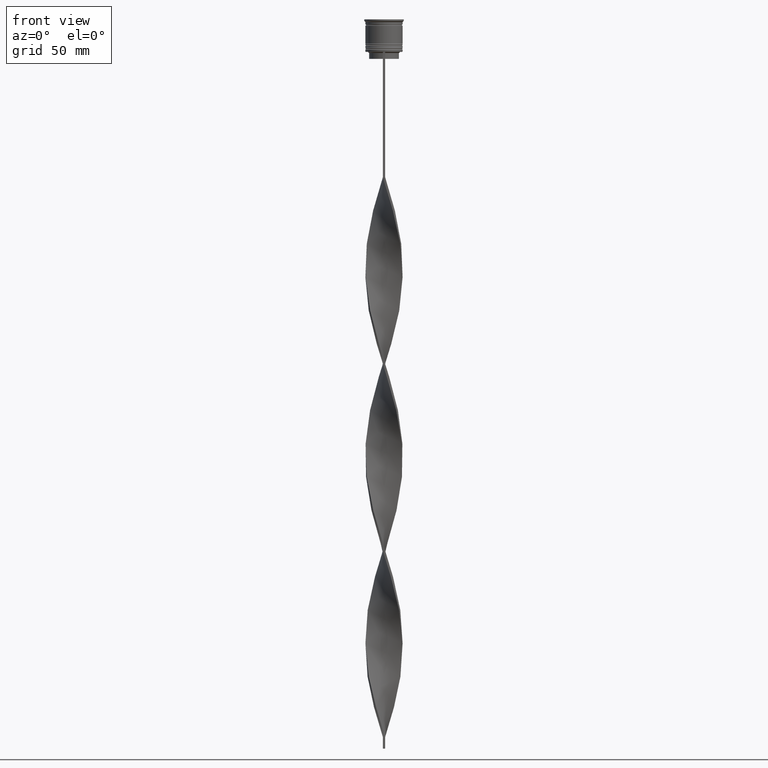
[diagram: clean part render]
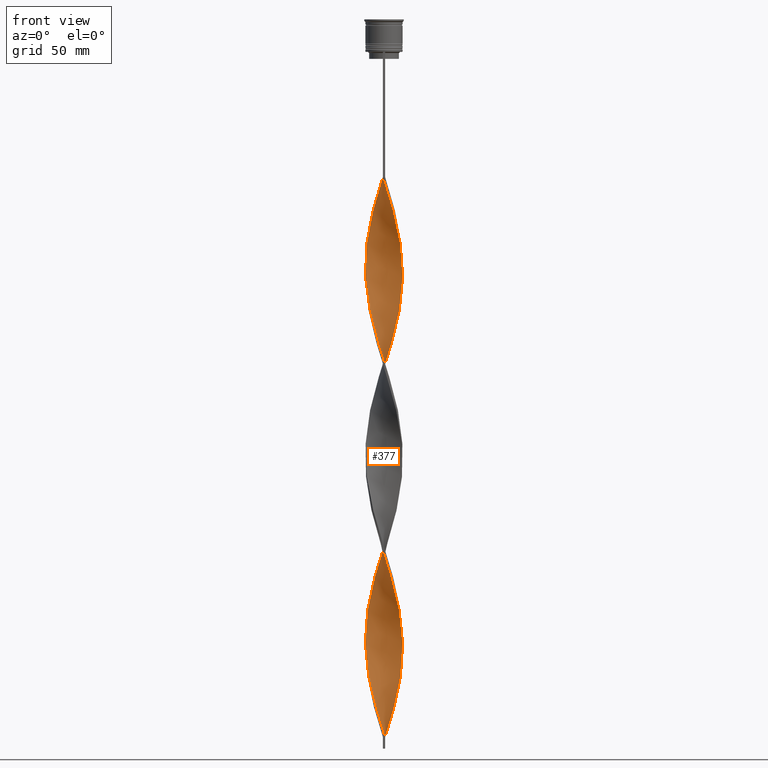
[diagram: same view with one face highlighted and labeled with its STEP entity id]
A machine part, front view. The second image highlights one B-rep face of the part: STEP entity #377.
In plain terms, the highlighted face is a freeform B-spline surface patch.
Its self-contained STEP definition (entity closure, byte-faithful):
#4 = CARTESIAN_POINT ( 'NONE',  ( -5.303300858899108405, 6.010407640085658088, -168.4166666666666572 ) ) ;
#13 = CARTESIAN_POINT ( 'NONE',  ( -6.766028581145814513, 4.297773521152309151, -252.7666666666667084 ) ) ;
#27 = CARTESIAN_POINT ( 'NONE',  ( -7.920097061150129569, -1.385649445451604622, -194.5250000000000341 ) ) ;
#30 = CARTESIAN_POINT ( 'NONE',  ( -7.999999999999996447, -0.4999999999999993339, -268.8333333333333712 ) ) ;
#37 = CARTESIAN_POINT ( 'NONE',  ( 3.765275523391981238, 7.104270692806152532, -214.6083333333333769 ) ) ;
#39 = CARTESIAN_POINT ( 'NONE',  ( -6.178243328853340266, -5.106790515527256602, -124.2333333333333343 ) ) ;
#61 = CARTESIAN_POINT ( 'NONE',  ( -5.303300858899104853, -6.010407640085650982, -128.2500000000000000 ) ) ;
#84 = CARTESIAN_POINT ( 'NONE',  ( 1.385649445451606621, 7.920097061150121576, -222.6416666666667084 ) ) ;
#98 = CARTESIAN_POINT ( 'NONE',  ( -7.762960627548706860, -1.996607696852001901, -196.5333333333333314 ) ) ;
#111 = CARTESIAN_POINT ( 'NONE',  ( -3.765275523391983015, -7.104270692806150755, -294.9416666666667197 ) ) ;
#112 = CARTESIAN_POINT ( 'NONE',  ( 8.039350853412310371, -0.1296136545969525100, -186.4916666666667027 ) ) ;
#120 = CARTESIAN_POINT ( 'NONE',  ( 7.762960627548706860, 1.996607696852002789, -276.8666666666667311 ) ) ;
#135 = CARTESIAN_POINT ( 'NONE',  ( 5.776330198885571754, 5.593028810685829910, -206.5750000000000171 ) ) ;
#152 = CARTESIAN_POINT ( 'NONE',  ( -7.355047443376712124, 3.186420735822188988, -256.7833333333333599 ) ) ;
#161 = CARTESIAN_POINT ( 'NONE',  ( 7.104270692806157861, 3.765275523391985679, -282.8916666666667084 ) ) ;
#178 = CARTESIAN_POINT ( 'NONE',  ( 0.4999999999999989453, -7.999999999999996447, -148.3333333333333428 ) ) ;
#181 = CARTESIAN_POINT ( 'NONE',  ( -5.593028810685828134, 5.776330198885573530, -86.07500000000003126 ) ) ;
#186 = CARTESIAN_POINT ( 'NONE',  ( 0.1296136545969480414, -8.039350853412315701, -230.6750000000000114 ) ) ;
#190 = CARTESIAN_POINT ( 'NONE',  ( -1.385649445451609063, 7.920097061150128681, -154.3583333333332916 ) ) ;
#191 = CARTESIAN_POINT ( 'NONE',  ( -7.960649146587688740, -1.129613654596947070, -110.1750000000000114 ) ) ;
#196 = CARTESIAN_POINT ( 'NONE',  ( 7.104270692806158749, 3.765275523391986123, -282.8916666666667084 ) ) ;
#200 = CARTESIAN_POINT ( 'NONE',  ( -7.960649146587688740, -1.129613654596947070, -110.1749999999999972 ) ) ;
#203 = CARTESIAN_POINT ( 'NONE',  ( 6.901056943637172481, -4.077427260010559884, -256.7833333333333599 ) ) ;
#209 = CARTESIAN_POINT ( 'NONE',  ( -5.593028810685828134, 5.776330198885573530, -86.07500000000003126 ) ) ;
#220 = CARTESIAN_POINT ( 'NONE',  ( -2.361026126641883049, -7.685929837894287076, -222.6416666666667084 ) ) ;
#228 = CARTESIAN_POINT ( 'NONE',  ( 4.077427260010560772, 6.901056943637172481, -136.2833333333333314 ) ) ;
#229 = CARTESIAN_POINT ( 'NONE',  ( -7.221957428453224637, -3.534302299652427148, -118.2083333333333286 ) ) ;
#249 = CARTESIAN_POINT ( 'NONE',  ( 7.104270692806158749, 3.765275523391986123, -122.2250000000000085 ) ) ;
#250 = CARTESIAN_POINT ( 'NONE',  ( -6.178243328853340266, -5.106790515527256602, -124.2333333333333343 ) ) ;
#251 = CARTESIAN_POINT ( 'NONE',  ( 8.000000000000003553, -0.5000000000000004441, -108.1666666666666714 ) ) ;
#266 = CARTESIAN_POINT ( 'NONE',  ( 7.221957428453231742, -3.534302299652430701, -98.12500000000002842 ) ) ;
#268 = CARTESIAN_POINT ( 'NONE',  ( 7.104270692806157861, 3.765275523391985679, -122.2250000000000085 ) ) ;
#272 = CARTESIAN_POINT ( 'NONE',  ( 5.303300858899110182, -6.010407640085657199, -248.7500000000000000 ) ) ;
#286 = CARTESIAN_POINT ( 'NONE',  ( 1.745319890619414060, -7.823289492240984799, -152.3499999999999943 ) ) ;
#287 = CARTESIAN_POINT ( 'NONE',  ( 3.186420735822192096, -7.355047443376720118, -80.05000000000001137 ) ) ;
#289 = CARTESIAN_POINT ( 'NONE',  ( -0.7576315500242785106, -7.979723957281213309, -304.9833333333333485 ) ) ;
#290 = CARTESIAN_POINT ( 'NONE',  ( 7.960649146587693181, -1.129613654596948624, -266.8249999999999886 ) ) ;
#295 = CARTESIAN_POINT ( 'NONE',  ( -6.427786469485477383, 4.830271518912637951, -250.7583333333332973 ) ) ;
#307 = CARTESIAN_POINT ( 'NONE',  ( 5.303300858899110182, -6.010407640085657199, -88.08333333333334281 ) ) ;
#308 = CARTESIAN_POINT ( 'NONE',  ( -3.765275523391983459, -7.104270692806151644, -294.9416666666667197 ) ) ;
#309 = CARTESIAN_POINT ( 'NONE',  ( 4.077427260010560772, 6.901056943637172481, -296.9499999999999886 ) ) ;
#312 = CARTESIAN_POINT ( 'NONE',  ( 7.960649146587686964, 1.129613654596949512, -190.5083333333333542 ) ) ;
#327 = CARTESIAN_POINT ( 'NONE',  ( -7.355047443376712124, 3.186420735822188988, -256.7833333333333599 ) ) ;
#336 = CARTESIAN_POINT ( 'NONE',  ( -5.593028810685836127, -5.776330198885574418, -210.5916666666666686 ) ) ;
#338 = CARTESIAN_POINT ( 'NONE',  ( -6.901056943637167151, -4.077427260010556331, -280.8833333333333826 ) ) ;
#346 = CARTESIAN_POINT ( 'NONE',  ( -3.534302299652427592, 7.221957428453224637, -238.7083333333333144 ) ) ;
#360 = CARTESIAN_POINT ( 'NONE',  ( -3.186420735822190764, 7.355047443376720118, -160.3833333333333258 ) ) ;
#377 = ADVANCED_FACE ( 'NONE', ( #556 ), #3165, .T. ) ;
#382 = CARTESIAN_POINT ( 'NONE',  ( -2.607565948252397625, 7.605824193947283263, -158.3750000000000284 ) ) ;
#394 = CARTESIAN_POINT ( 'NONE',  ( -4.297773521152310039, -6.766028581145813625, -292.9333333333333371 ) ) ;
#397 = CARTESIAN_POINT ( 'NONE',  ( 4.297773521152310927, 6.766028581145813625, -212.6000000000000227 ) ) ;
#406 = CARTESIAN_POINT ( 'NONE',  ( 0.5000000000000008882, 8.000000000000003553, -309.0000000000000000 ) ) ;
#408 = CARTESIAN_POINT ( 'NONE',  ( -6.580156458821116772, 4.620552220368687735, -174.4416666666666629 ) ) ;
#421 = CARTESIAN_POINT ( 'NONE',  ( 2.947664213147154211, -7.453943633173752303, -156.3666666666666458 ) ) ;
#446 = CARTESIAN_POINT ( 'NONE',  ( 0.4999999999999989453, -7.999999999999996447, -309.0000000000000000 ) ) ;
#448 = CARTESIAN_POINT ( 'NONE',  ( -3.534302299652427592, 7.221957428453224637, -238.7083333333333144 ) ) ;
#466 = CARTESIAN_POINT ( 'NONE',  ( 6.766028581145813625, -4.297773521152310039, -172.4333333333333371 ) ) ;
#476 = CARTESIAN_POINT ( 'NONE',  ( 1.129613654596949290, 7.960649146587693181, -306.9916666666667311 ) ) ;
#484 = CARTESIAN_POINT ( 'NONE',  ( -4.620552220368685958, 6.580156458821110554, -242.7250000000000227 ) ) ;
#496 = CARTESIAN_POINT ( 'NONE',  ( 2.947664213147157763, 7.453943633173757632, -140.3000000000000114 ) ) ;
#497 = CARTESIAN_POINT ( 'NONE',  ( -5.776330198885573530, -5.593028810685827246, -126.2416666666666742 ) ) ;
#506 = CARTESIAN_POINT ( 'NONE',  ( 6.427786469485482712, 4.830271518912642392, -286.9083333333334167 ) ) ;
#513 = CARTESIAN_POINT ( 'NONE',  ( 1.996607696852003233, -7.762960627548705084, -236.6999999999999886 ) ) ;
#519 = CARTESIAN_POINT ( 'NONE',  ( -2.947664213147154655, 7.453943633173751415, -76.03333333333334565 ) ) ;
#524 = CARTESIAN_POINT ( 'NONE',  ( -7.605824193947280598, -2.607565948252400290, -198.5416666666667140 ) ) ;
#533 = CARTESIAN_POINT ( 'NONE',  ( 1.385649445451609729, -7.920097061150129569, -234.6916666666666629 ) ) ;
#537 = CARTESIAN_POINT ( 'NONE',  ( 0.1296136545969480136, -8.039350853412315701, -70.00833333333335418 ) ) ;
#551 = CARTESIAN_POINT ( 'NONE',  ( 6.178243328853345595, -5.106790515527261043, -252.7666666666667084 ) ) ;
#556 = FACE_OUTER_BOUND ( 'NONE', #3594, .T. ) ;
#557 = CARTESIAN_POINT ( 'NONE',  ( -7.104270692806150755, 3.765275523391983015, -94.10833333333334849 ) ) ;
#571 = CARTESIAN_POINT ( 'NONE',  ( 0.5000000000000008882, 8.000000000000003553, -309.0000000000000000 ) ) ;
#573 = CARTESIAN_POINT ( 'NONE',  ( 0.7576315500242786216, -7.979723957281222191, -72.01666666666667993 ) ) ;
#574 = CARTESIAN_POINT ( 'NONE',  ( -6.580156458821110554, -4.620552220368685958, -122.2250000000000085 ) ) ;
#576 = CARTESIAN_POINT ( 'NONE',  ( 7.920097061150129569, 1.385649445451609285, -114.1916666666666771 ) ) ;
#589 = CARTESIAN_POINT ( 'NONE',  ( 2.361026126641882161, -7.685929837894279970, -154.3583333333333201 ) ) ;
#591 = CARTESIAN_POINT ( 'NONE',  ( 2.607565948252398513, -7.605824193947282374, -78.04166666666667140 ) ) ;
#593 = CARTESIAN_POINT ( 'NONE',  ( -7.453943633173752303, -2.947664213147154655, -276.8666666666667311 ) ) ;
#597 = CARTESIAN_POINT ( 'NONE',  ( -6.427786469485482712, -4.830271518912645057, -206.5750000000000171 ) ) ;
#600 = CARTESIAN_POINT ( 'NONE',  ( 5.776330198885571754, 5.593028810685829910, -206.5750000000000171 ) ) ;
#608 = CARTESIAN_POINT ( 'NONE',  ( 4.620552220368690399, 6.580156458821114995, -134.2750000000000341 ) ) ;
#611 = CARTESIAN_POINT ( 'NONE',  ( -7.960649146587693181, 1.129613654596953065, -186.4916666666667027 ) ) ;
#616 = CARTESIAN_POINT ( 'NONE',  ( 6.178243328853342042, 5.106790515527255714, -204.5666666666666629 ) ) ;
#631 = CARTESIAN_POINT ( 'NONE',  ( 6.427786469485481824, 4.830271518912641504, -126.2416666666666742 ) ) ;
#633 = CARTESIAN_POINT ( 'NONE',  ( -3.186420735822189432, -7.355047443376712124, -296.9499999999999886 ) ) ;
#635 = CARTESIAN_POINT ( 'NONE',  ( 7.221957428453231742, -3.534302299652430701, -258.7916666666666288 ) ) ;
#639 = CARTESIAN_POINT ( 'NONE',  ( 7.979723957281213309, -0.7576315500242789547, -184.4833333333333201 ) ) ;
#656 = CARTESIAN_POINT ( 'NONE',  ( 7.605824193947273493, -2.607565948252400290, -178.4583333333333428 ) ) ;
#657 = CARTESIAN_POINT ( 'NONE',  ( -0.4999999999999998890, 7.999999999999996447, -68.00000000000000000 ) ) ;
#666 = CARTESIAN_POINT ( 'NONE',  ( -8.000000000000003553, 0.5000000000000014433, -188.5000000000000000 ) ) ;
#679 = CARTESIAN_POINT ( 'NONE',  ( -7.221957428453224637, -3.534302299652427148, -278.8750000000000000 ) ) ;
#692 = CARTESIAN_POINT ( 'NONE',  ( 7.920097061150129569, 1.385649445451609285, -274.8583333333332916 ) ) ;
#710 = CARTESIAN_POINT ( 'NONE',  ( 7.823289492240984799, 1.745319890619413616, -192.5166666666666799 ) ) ;
#729 = CARTESIAN_POINT ( 'NONE',  ( -0.1296136545969484577, -8.039350853412310371, -146.3250000000000171 ) ) ;
#733 = CARTESIAN_POINT ( 'NONE',  ( -6.010407640085651870, 5.303300858899104853, -88.08333333333334281 ) ) ;
#737 = CARTESIAN_POINT ( 'NONE',  ( 7.979723957281222191, 0.7576315500242781775, -272.8500000000000227 ) ) ;
#739 = CARTESIAN_POINT ( 'NONE',  ( -6.766028581145818954, -4.297773521152311815, -204.5666666666666629 ) ) ;
#748 = CARTESIAN_POINT ( 'NONE',  ( -1.996607696852002345, -7.762960627548698866, -300.9666666666666401 ) ) ;
#749 = CARTESIAN_POINT ( 'NONE',  ( -0.4999999999999998890, -8.000000000000003553, -68.00000000000000000 ) ) ;
#751 = CARTESIAN_POINT ( 'NONE',  ( -2.947664213147154655, 7.453943633173751415, -236.6999999999999886 ) ) ;
#762 = CARTESIAN_POINT ( 'NONE',  ( 1.745319890619417169, 7.823289492240988352, -304.9833333333333485 ) ) ;
#779 = CARTESIAN_POINT ( 'NONE',  ( 3.765275523391981682, 7.104270692806153420, -214.6083333333333769 ) ) ;
#796 = CARTESIAN_POINT ( 'NONE',  ( -0.1296136545969484577, -8.039350853412308595, -306.9916666666667879 ) ) ;
#797 = CARTESIAN_POINT ( 'NONE',  ( 7.221957428453223748, 3.534302299652429369, -198.5416666666667140 ) ) ;
#807 = CARTESIAN_POINT ( 'NONE',  ( 1.385649445451609729, -7.920097061150128681, -74.02500000000000568 ) ) ;
#815 = CARTESIAN_POINT ( 'NONE',  ( -6.766028581145818954, -4.297773521152311815, -204.5666666666666629 ) ) ;
#822 = CARTESIAN_POINT ( 'NONE',  ( 6.580156458821114995, -4.620552220368690399, -254.7749999999999773 ) ) ;
#828 = CARTESIAN_POINT ( 'NONE',  ( 4.620552220368690399, 6.580156458821114995, -134.2750000000000341 ) ) ;
#838 = CARTESIAN_POINT ( 'NONE',  ( 1.385649445451609729, -7.920097061150128681, -234.6916666666666629 ) ) ;
#854 = EDGE_CURVE ( 'NONE', #997, #1561, #2047, .T. ) ;
#858 = CARTESIAN_POINT ( 'NONE',  ( 7.453943633173757632, -2.947664213147156875, -260.8000000000000114 ) ) ;
#862 = CARTESIAN_POINT ( 'NONE',  ( 3.534302299652431145, 7.221957428453231742, -138.2916666666667140 ) ) ;
#872 = CARTESIAN_POINT ( 'NONE',  ( -7.979723957281215085, 0.7576315500242779555, -104.1500000000000057 ) ) ;
#879 = CARTESIAN_POINT ( 'NONE',  ( 4.830271518912643280, -6.427786469485482712, -86.07500000000003126 ) ) ;
#882 = VERTEX_POINT ( 'NONE', #2038 ) ;
#884 = ORIENTED_EDGE ( 'NONE', *, *, #1318, .F. ) ;
#904 = CARTESIAN_POINT ( 'NONE',  ( -0.1296136545969484577, -8.039350853412308595, -146.3250000000000171 ) ) ;
#908 = CARTESIAN_POINT ( 'NONE',  ( 5.776330198885578859, -5.593028810685832575, -250.7583333333333258 ) ) ;
#911 = CARTESIAN_POINT ( 'NONE',  ( 3.186420735822190320, 7.355047443376712124, -216.6166666666666742 ) ) ;
#921 = CARTESIAN_POINT ( 'NONE',  ( 5.106790515527261931, 6.178243328853344707, -132.2666666666666799 ) ) ;
#924 = CARTESIAN_POINT ( 'NONE',  ( -4.620552220368688623, -6.580156458821115883, -214.6083333333333769 ) ) ;
#928 = CARTESIAN_POINT ( 'NONE',  ( 6.766028581145813625, -4.297773521152310039, -172.4333333333333371 ) ) ;
#936 = CARTESIAN_POINT ( 'NONE',  ( 8.039350853412313924, 0.1296136545969474863, -110.1750000000000114 ) ) ;
#938 = CARTESIAN_POINT ( 'NONE',  ( -7.685929837894279970, -2.361026126641882605, -274.8583333333332916 ) ) ;
#940 = CARTESIAN_POINT ( 'NONE',  ( -7.979723957281220414, -0.7576315500242771783, -192.5166666666666799 ) ) ;
#948 = CARTESIAN_POINT ( 'NONE',  ( -6.010407640085651870, 5.303300858899104853, -248.7500000000000000 ) ) ;
#965 = CARTESIAN_POINT ( 'NONE',  ( -7.979723957281215085, 0.7576315500242779555, -264.8166666666667197 ) ) ;
#979 = CARTESIAN_POINT ( 'NONE',  ( 2.947664213147157763, 7.453943633173757632, -300.9666666666666401 ) ) ;
#985 = CARTESIAN_POINT ( 'NONE',  ( -7.762960627548698866, 1.996607696852001457, -260.8000000000000114 ) ) ;
#986 = CARTESIAN_POINT ( 'NONE',  ( -2.607565948252396737, -7.605824193947274381, -138.2916666666667140 ) ) ;
#992 = EDGE_CURVE ( 'NONE', #997, #2318, #3274, .T. ) ;
#997 = VERTEX_POINT ( 'NONE', #1360 ) ;
#1000 = DIRECTION ( 'NONE',  ( 0.000000000000000000, 1.000000000000000000, 0.000000000000000000 ) ) ;
#1013 = CARTESIAN_POINT ( 'NONE',  ( 6.427786469485475607, -4.830271518912642392, -170.4250000000000398 ) ) ;
#1024 = CARTESIAN_POINT ( 'NONE',  ( 8.039350853412313924, 0.1296136545969474863, -270.8416666666666401 ) ) ;
#1026 = CARTESIAN_POINT ( 'NONE',  ( -1.385649445451608841, 7.920097061150129569, -154.3583333333333201 ) ) ;
#1041 = CARTESIAN_POINT ( 'NONE',  ( 7.960649146587686964, 1.129613654596949734, -190.5083333333333826 ) ) ;
#1051 = CARTESIAN_POINT ( 'NONE',  ( -4.297773521152312703, 6.766028581145818954, -164.3999999999999773 ) ) ;
#1070 = CARTESIAN_POINT ( 'NONE',  ( 4.620552220368690399, 6.580156458821114995, -294.9416666666667197 ) ) ;
#1087 = CARTESIAN_POINT ( 'NONE',  ( 7.685929837894280858, 2.361026126641878609, -194.5250000000000341 ) ) ;
#1106 = CARTESIAN_POINT ( 'NONE',  ( 6.901056943637168040, 4.077427260010555443, -200.5500000000000114 ) ) ;
#1122 = CARTESIAN_POINT ( 'NONE',  ( 4.297773521152313592, -6.766028581145818954, -244.7333333333333201 ) ) ;
#1134 = CARTESIAN_POINT ( 'NONE',  ( 6.766028581145818954, 4.297773521152312703, -124.2333333333333343 ) ) ;
#1140 = CARTESIAN_POINT ( 'NONE',  ( -6.580156458821116772, 4.620552220368687735, -174.4416666666666629 ) ) ;
#1153 = CARTESIAN_POINT ( 'NONE',  ( -5.303300858899108405, 6.010407640085658088, -168.4166666666666572 ) ) ;
#1168 = CARTESIAN_POINT ( 'NONE',  ( -3.534302299652435142, -7.221957428453229966, -218.6250000000000284 ) ) ;
#1172 = CARTESIAN_POINT ( 'NONE',  ( 1.745319890619417169, 7.823289492240988352, -144.3166666666666629 ) ) ;
#1173 = CARTESIAN_POINT ( 'NONE',  ( 7.762960627548706860, 1.996607696852002789, -116.2000000000000028 ) ) ;
#1189 = CARTESIAN_POINT ( 'NONE',  ( -6.766028581145814513, 4.297773521152309151, -92.09999999999999432 ) ) ;
#1206 = CARTESIAN_POINT ( 'NONE',  ( 8.039350853412313924, 0.1296136545969474863, -110.1749999999999972 ) ) ;
#1207 = CARTESIAN_POINT ( 'NONE',  ( -2.607565948252396737, -7.605824193947275269, -138.2916666666667140 ) ) ;
#1209 = CARTESIAN_POINT ( 'NONE',  ( 3.534302299652431145, 7.221957428453231742, -138.2916666666667140 ) ) ;
#1211 = CARTESIAN_POINT ( 'NONE',  ( -8.039350853412310371, 0.1296136545969479026, -266.8249999999999886 ) ) ;
#1213 = CARTESIAN_POINT ( 'NONE',  ( -3.534302299652435142, -7.221957428453229966, -218.6250000000000568 ) ) ;
#1218 = CARTESIAN_POINT ( 'NONE',  ( 7.355047443376712124, -3.186420735822189876, -176.4499999999999886 ) ) ;
#1231 = CARTESIAN_POINT ( 'NONE',  ( 4.830271518912642392, -6.427786469485481824, -86.07500000000003126 ) ) ;
#1234 = CARTESIAN_POINT ( 'NONE',  ( 7.920097061150128681, 1.385649445451609285, -274.8583333333332916 ) ) ;
#1238 = CARTESIAN_POINT ( 'NONE',  ( 1.385649445451606399, 7.920097061150122464, -222.6416666666667084 ) ) ;
#1251 = CARTESIAN_POINT ( 'NONE',  ( -8.000000000000003553, 0.5000000000000014433, -188.5000000000000000 ) ) ;
#1254 = CARTESIAN_POINT ( 'NONE',  ( 0.1296136545969529541, 8.039350853412308595, -226.6583333333333883 ) ) ;
#1262 = CARTESIAN_POINT ( 'NONE',  ( -7.355047443376721006, -3.186420735822190764, -200.5500000000000114 ) ) ;
#1273 = CARTESIAN_POINT ( 'NONE',  ( -7.605824193947275269, 2.607565948252396293, -258.7916666666666288 ) ) ;
#1285 = ORIENTED_EDGE ( 'NONE', *, *, #992, .T. ) ;
#1286 = CARTESIAN_POINT ( 'NONE',  ( -4.830271518912641504, 6.427786469485482712, -166.4083333333333599 ) ) ;
#1288 = CARTESIAN_POINT ( 'NONE',  ( -6.580156458821110554, -4.620552220368685958, -282.8916666666667084 ) ) ;
#1296 = CARTESIAN_POINT ( 'NONE',  ( -1.129613654596947514, 7.960649146587686964, -230.6750000000000114 ) ) ;
#1298 = CARTESIAN_POINT ( 'NONE',  ( -4.297773521152310039, -6.766028581145813625, -132.2666666666666799 ) ) ;
#1303 = CARTESIAN_POINT ( 'NONE',  ( 0.5000000000000008882, 8.000000000000003553, -309.0000000000000000 ) ) ;
#1308 = CARTESIAN_POINT ( 'NONE',  ( -1.996607696852002345, 7.762960627548706860, -156.3666666666666458 ) ) ;
#1318 = EDGE_CURVE ( 'NONE', #1561, #882, #3050, .T. ) ;
#1320 = CARTESIAN_POINT ( 'NONE',  ( -1.996607696852002345, -7.762960627548698866, -140.3000000000000114 ) ) ;
#1344 = CARTESIAN_POINT ( 'NONE',  ( 0.1296136545969529541, 8.039350853412310371, -226.6583333333333883 ) ) ;
#1360 = CARTESIAN_POINT ( 'NONE',  ( -0.4999999999999998890, -8.000000000000003553, -68.00000000000000000 ) ) ;
#1367 = CARTESIAN_POINT ( 'NONE',  ( -0.7576315500242785106, -7.979723957281213309, -304.9833333333333485 ) ) ;
#1369 = CARTESIAN_POINT ( 'NONE',  ( 7.453943633173752303, 2.947664213147153767, -196.5333333333333314 ) ) ;
#1391 = CARTESIAN_POINT ( 'NONE',  ( -6.010407640085651870, 5.303300858899104853, -248.7500000000000000 ) ) ;
#1398 = CARTESIAN_POINT ( 'NONE',  ( 5.106790515527261931, 6.178243328853344707, -292.9333333333333371 ) ) ;
#1400 = CARTESIAN_POINT ( 'NONE',  ( -0.4999999999999998890, -8.000000000000003553, -68.00000000000000000 ) ) ;
#1410 = CARTESIAN_POINT ( 'NONE',  ( -5.593028810685828134, 5.776330198885573530, -246.7416666666666742 ) ) ;
#1419 = CARTESIAN_POINT ( 'NONE',  ( 5.593028810685833463, 5.776330198885578859, -290.9250000000000682 ) ) ;
#1432 = CARTESIAN_POINT ( 'NONE',  ( 6.766028581145818954, 4.297773521152312703, -284.9000000000000341 ) ) ;
#1443 = CARTESIAN_POINT ( 'NONE',  ( -3.765275523391985235, 7.104270692806158749, -162.3916666666666799 ) ) ;
#1444 = CARTESIAN_POINT ( 'NONE',  ( -0.4999999999999998890, 7.999999999999996447, -68.00000000000000000 ) ) ;
#1450 = CARTESIAN_POINT ( 'NONE',  ( -4.077427260010561660, -6.901056943637172481, -216.6166666666666742 ) ) ;
#1454 = CARTESIAN_POINT ( 'NONE',  ( -7.823289492240983023, -1.745319890619414727, -112.1833333333333229 ) ) ;
#1459 = CARTESIAN_POINT ( 'NONE',  ( 8.000000000000003553, -0.5000000000000004441, -268.8333333333333712 ) ) ;
#1463 = CARTESIAN_POINT ( 'NONE',  ( -2.607565948252397625, 7.605824193947282374, -158.3750000000000284 ) ) ;
#1464 = CARTESIAN_POINT ( 'NONE',  ( -7.762960627548698866, 1.996607696852001457, -100.1333333333333400 ) ) ;
#1477 = CARTESIAN_POINT ( 'NONE',  ( 0.5000000000000008882, 8.000000000000003553, -309.0000000000000000 ) ) ;
#1481 = CARTESIAN_POINT ( 'NONE',  ( -0.7576315500242776224, 7.979723957281220414, -152.3499999999999943 ) ) ;
#1501 = CARTESIAN_POINT ( 'NONE',  ( -7.823289492240983023, -1.745319890619414727, -112.1833333333333229 ) ) ;
#1502 = CARTESIAN_POINT ( 'NONE',  ( 7.605824193947282374, 2.607565948252398069, -118.2083333333333286 ) ) ;
#1516 = CARTESIAN_POINT ( 'NONE',  ( 7.685929837894286187, -2.361026126641885270, -102.1416666666666941 ) ) ;
#1517 = CARTESIAN_POINT ( 'NONE',  ( -4.297773521152310039, -6.766028581145813625, -132.2666666666666799 ) ) ;
#1518 = CARTESIAN_POINT ( 'NONE',  ( 6.766028581145818954, 4.297773521152312703, -124.2333333333333343 ) ) ;
#1522 = CARTESIAN_POINT ( 'NONE',  ( 7.823289492240990128, -1.745319890619416725, -264.8166666666667197 ) ) ;
#1526 = CARTESIAN_POINT ( 'NONE',  ( 7.221957428453223748, 3.534302299652429369, -198.5416666666666856 ) ) ;
#1538 = CARTESIAN_POINT ( 'NONE',  ( 7.823289492240990128, -1.745319890619416725, -104.1500000000000057 ) ) ;
#1543 = CARTESIAN_POINT ( 'NONE',  ( 6.580156458821114995, -4.620552220368690399, -254.7749999999999488 ) ) ;
#1548 = CARTESIAN_POINT ( 'NONE',  ( -5.776330198885573530, -5.593028810685827246, -286.9083333333333599 ) ) ;
#1560 = CARTESIAN_POINT ( 'NONE',  ( 7.453943633173757632, -2.947664213147156875, -100.1333333333333400 ) ) ;
#1561 = VERTEX_POINT ( 'NONE', #1303 ) ;
#1562 = CARTESIAN_POINT ( 'NONE',  ( -2.607565948252396737, -7.605824193947274381, -298.9583333333334281 ) ) ;
#1564 = CARTESIAN_POINT ( 'NONE',  ( 3.534302299652431145, 7.221957428453231742, -298.9583333333334281 ) ) ;
#1567 = CARTESIAN_POINT ( 'NONE',  ( 2.607565948252400734, 7.605824193947273493, -218.6250000000000284 ) ) ;
#1577 = CARTESIAN_POINT ( 'NONE',  ( 7.685929837894286187, -2.361026126641885270, -102.1416666666666799 ) ) ;
#1580 = CARTESIAN_POINT ( 'NONE',  ( -0.1296136545969484577, -8.039350853412310371, -306.9916666666667311 ) ) ;
#1585 = CARTESIAN_POINT ( 'NONE',  ( 6.580156458821112331, 4.620552220368682406, -202.5583333333333371 ) ) ;
#1596 = CARTESIAN_POINT ( 'NONE',  ( -0.7576315500242776224, 7.979723957281220414, -152.3499999999999943 ) ) ;
#1610 = CARTESIAN_POINT ( 'NONE',  ( 7.685929837894280858, 2.361026126641878609, -194.5250000000000341 ) ) ;
#1644 = CARTESIAN_POINT ( 'NONE',  ( -7.221957428453229966, 3.534302299652434698, -178.4583333333333428 ) ) ;
#1656 = CARTESIAN_POINT ( 'NONE',  ( 2.607565948252400734, 7.605824193947272605, -218.6250000000000568 ) ) ;
#1668 = CARTESIAN_POINT ( 'NONE',  ( -7.979723957281220414, -0.7576315500242771783, -192.5166666666666799 ) ) ;
#1684 = CARTESIAN_POINT ( 'NONE',  ( 7.104270692806154308, -3.765275523391980794, -174.4416666666666629 ) ) ;
#1709 = CARTESIAN_POINT ( 'NONE',  ( 1.129613654596946626, -7.960649146587688740, -150.3416666666666401 ) ) ;
#1714 = CARTESIAN_POINT ( 'NONE',  ( -4.077427260010556331, 6.901056943637167151, -80.05000000000001137 ) ) ;
#1746 = CARTESIAN_POINT ( 'NONE',  ( -1.129613654596947514, 7.960649146587686964, -70.00833333333335418 ) ) ;
#1751 = CARTESIAN_POINT ( 'NONE',  ( -7.762960627548698866, 1.996607696852001457, -260.8000000000000114 ) ) ;
#1766 = CARTESIAN_POINT ( 'NONE',  ( 0.5000000000000008882, 8.000000000000003553, -148.3333333333333428 ) ) ;
#1767 = CARTESIAN_POINT ( 'NONE',  ( -3.186420735822189432, -7.355047443376712124, -136.2833333333333314 ) ) ;
#1774 = CARTESIAN_POINT ( 'NONE',  ( -7.920097061150128681, -1.385649445451604844, -194.5250000000000341 ) ) ;
#1777 = CARTESIAN_POINT ( 'NONE',  ( -8.039350853412310371, 0.1296136545969479026, -106.1583333333333456 ) ) ;
#1782 = CARTESIAN_POINT ( 'NONE',  ( 7.960649146587693181, -1.129613654596948402, -266.8249999999999886 ) ) ;
#1786 = CARTESIAN_POINT ( 'NONE',  ( 7.823289492240990128, -1.745319890619416725, -104.1500000000000057 ) ) ;
#1787 = CARTESIAN_POINT ( 'NONE',  ( -3.534302299652427592, 7.221957428453224637, -78.04166666666667140 ) ) ;
#1792 = CARTESIAN_POINT ( 'NONE',  ( 7.453943633173757632, -2.947664213147156875, -260.8000000000000114 ) ) ;
#1799 = CARTESIAN_POINT ( 'NONE',  ( 3.765275523391985679, -7.104270692806157861, -242.7250000000000227 ) ) ;
#1803 = CARTESIAN_POINT ( 'NONE',  ( 4.297773521152313592, -6.766028581145818954, -84.06666666666667709 ) ) ;
#1822 = CARTESIAN_POINT ( 'NONE',  ( 7.979723957281222191, 0.7576315500242781775, -112.1833333333333229 ) ) ;
#1824 = CARTESIAN_POINT ( 'NONE',  ( 7.960649146587693181, -1.129613654596948402, -106.1583333333333456 ) ) ;
#1841 = CARTESIAN_POINT ( 'NONE',  ( 6.427786469485482712, 4.830271518912642392, -126.2416666666666600 ) ) ;
#1842 = CARTESIAN_POINT ( 'NONE',  ( -2.361026126641883049, 7.685929837894279082, -74.02500000000000568 ) ) ;
#1843 = CARTESIAN_POINT ( 'NONE',  ( 7.979723957281222191, 0.7576315500242781775, -112.1833333333333229 ) ) ;
#1847 = CARTESIAN_POINT ( 'NONE',  ( -1.745319890619415171, 7.823289492240983023, -72.01666666666667993 ) ) ;
#1859 = CARTESIAN_POINT ( 'NONE',  ( 2.947664213147154211, -7.453943633173752303, -156.3666666666666458 ) ) ;
#1864 = CARTESIAN_POINT ( 'NONE',  ( 3.765275523391986123, -7.104270692806158749, -242.7250000000000227 ) ) ;
#1869 = CARTESIAN_POINT ( 'NONE',  ( 1.996607696852003233, 7.762960627548698866, -220.6333333333333542 ) ) ;
#1871 =( BOUNDED_CURVE ( )  B_SPLINE_CURVE ( 2, ( #1444, #2140, #2755, #1842, #519, #1787, #2122, #4028, #3420, #209, #3395, #3045, #1189, #557, #3379, #2083, #1464, #2734, #4005, #3339, #3063, #191, #1501, #2771, #2469, #229, #3104, #574, #250, #497, #4045, #3731, #1517, #3969, #1767, #1207, #3437, #3754, #2180, #904, #3121, #2489, #286, #589, #1859, #2788, #4062, #3189, #1893, #2206, #2837, #4110, #928, #4094, #1218, #656, #3821, #3800, #639, #3464, #1958, #312, #2500, #1610, #2878, #1526, #2518, #1585, #616, #600, #3781, #1916, #3762, #37, #911, #1567, #1869, #1238, #2534, #1254, #3173, #1296, #2853, #1933, #2575, #346, #3153, #3841, #3488, #2556, #948, #295, #13, #2226, #327, #1273, #985, #2266, #965, #2796, #2244, #3504, #3447, #2190, #3525, #679, #3217, #4071, #3130, #1548, #2818, #2640, #394, #111, #3596, #2899, #748, #3259, #1367, #796, #446 ),
 .UNSPECIFIED., .F., .T. ) 
 B_SPLINE_CURVE_WITH_KNOTS ( ( 3, 2, 2, 2, 2, 2, 2, 2, 2, 2, 2, 2, 2, 2, 2, 2, 2, 2, 2, 2, 2, 2, 2, 2, 2, 2, 2, 2, 2, 2, 2, 2, 2, 2, 2, 2, 2, 2, 2, 2, 2, 2, 2, 2, 2, 2, 2, 2, 2, 2, 2, 2, 2, 2, 2, 2, 2, 2, 2, 2, 3 ),
 ( 0.000000000000000000, 0.01250000000000000243, 0.02500000000000000486, 0.03749999999999999861, 0.05000000000000000971, 0.06250000000000000000, 0.07499999999999999722, 0.08749999999999998057, 0.1000000000000000194, 0.1125000000000000028, 0.1250000000000000000, 0.1375000000000000111, 0.1499999999999999944, 0.1625000000000000056, 0.1749999999999999611, 0.1875000000000000000, 0.2000000000000000389, 0.2124999999999999944, 0.2250000000000000056, 0.2374999999999999611, 0.2500000000000000000, 0.2625000000000000111, 0.2750000000000000222, 0.2874999999999999778, 0.2999999999999999889, 0.3125000000000000000, 0.3250000000000000111, 0.3375000000000000777, 0.3499999999999999223, 0.3624999999999999889, 0.3750000000000000000, 0.3875000000000000111, 0.4000000000000000777, 0.4124999999999999223, 0.4249999999999999889, 0.4375000000000000000, 0.4500000000000000111, 0.4625000000000000777, 0.4749999999999999223, 0.4874999999999999889, 0.5000000000000000000, 0.5124999999999999556, 0.5250000000000000222, 0.5374999999999999778, 0.5500000000000000444, 0.5625000000000000000, 0.5749999999999999556, 0.5875000000000000222, 0.5999999999999999778, 0.6125000000000000444, 0.6250000000000000000, 0.6374999999999999556, 0.6500000000000000222, 0.6624999999999999778, 0.6750000000000001554, 0.6875000000000000000, 0.6999999999999998446, 0.7125000000000000222, 0.7249999999999999778, 0.7375000000000001554, 0.7500000000000000000 ),
 .UNSPECIFIED. ) 
 CURVE ( )  GEOMETRIC_REPRESENTATION_ITEM ( )  RATIONAL_B_SPLINE_CURVE ( ( 1.000000000000000000, 0.9969173337331279638, 1.000000000000000000, 0.9969173337331279638, 1.000000000000000000, 0.9969173337331279638, 1.000000000000000000, 0.9969173337331279638, 1.000000000000000000, 0.9969173337331279638, 1.000000000000000000, 0.9969173337331279638, 1.000000000000000000, 0.9969173337331279638, 1.000000000000000000, 0.9969173337331279638, 1.000000000000000000, 0.9969173337331279638, 1.000000000000000000, 0.9969173337331279638, 1.000000000000000000, 0.9969173337331279638, 1.000000000000000000, 0.9969173337331279638, 1.000000000000000000, 0.9969173337331279638, 1.000000000000000000, 0.9969173337331279638, 1.000000000000000000, 0.9969173337331279638, 1.000000000000000000, 0.9969173337331279638, 1.000000000000000000, 0.9969173337331279638, 1.000000000000000000, 0.9969173337331279638, 1.000000000000000000, 0.9969173337331279638, 1.000000000000000000, 0.9969173337331279638, 1.000000000000000000, 0.9969173337331279638, 1.000000000000000000, 0.9969173337331279638, 1.000000000000000000, 0.9969173337331279638, 1.000000000000000000, 0.9969173337331279638, 1.000000000000000000, 0.9969173337331279638, 1.000000000000000000, 0.9969173337331279638, 1.000000000000000000, 0.9969173337331279638, 1.000000000000000000, 0.9969173337331279638, 1.000000000000000000, 0.9969173337331279638, 1.000000000000000000, 0.9969173337331279638, 1.000000000000000000, 0.9969173337331279638, 1.000000000000000000, 0.9969173337331279638, 1.000000000000000000, 0.9969173337331279638, 1.000000000000000000, 0.9969173337331279638, 1.000000000000000000, 0.9969173337331279638, 1.000000000000000000, 0.9969173337331279638, 1.000000000000000000, 0.9969173337331279638, 1.000000000000000000, 0.9969173337331279638, 1.000000000000000000, 0.9969173337331279638, 1.000000000000000000, 0.9969173337331279638, 1.000000000000000000, 0.9969173337331279638, 1.000000000000000000, 0.9969173337331279638, 1.000000000000000000, 0.9969173337331279638, 1.000000000000000000, 0.9969173337331279638, 1.000000000000000000, 0.9969173337331279638, 1.000000000000000000, 0.9969173337331279638, 1.000000000000000000, 0.9969173337331279638, 1.000000000000000000, 0.9969173337331279638, 1.000000000000000000, 0.9969173337331279638, 1.000000000000000000, 0.9969173337331279638, 1.000000000000000000, 0.9969173337331279638, 1.000000000000000000, 0.9969173337331279638, 1.000000000000000000, 0.9969173337331279638, 1.000000000000000000, 0.9969173337331279638, 1.000000000000000000, 0.9969173337331279638, 1.000000000000000000, 0.9969173337331279638, 1.000000000000000000, 0.9969173337331279638, 1.000000000000000000, 0.9969173337331279638, 1.000000000000000000, 0.9969173337331279638, 1.000000000000000000, 0.9969173337331279638, 1.000000000000000000 ) ) 
 REPRESENTATION_ITEM ( '' )  );
#1873 = CARTESIAN_POINT ( 'NONE',  ( -5.776330198885573530, -5.593028810685827246, -126.2416666666666600 ) ) ;
#1883 = CARTESIAN_POINT ( 'NONE',  ( 1.385649445451609729, -7.920097061150129569, -74.02500000000000568 ) ) ;
#1885 = CARTESIAN_POINT ( 'NONE',  ( -7.823289492240983023, -1.745319890619414727, -272.8500000000000227 ) ) ;
#1888 = CARTESIAN_POINT ( 'NONE',  ( 5.593028810685833463, 5.776330198885578859, -290.9250000000000682 ) ) ;
#1893 = CARTESIAN_POINT ( 'NONE',  ( 5.106790515527256602, -6.178243328853340266, -164.3999999999999773 ) ) ;
#1907 = CARTESIAN_POINT ( 'NONE',  ( 2.947664213147157763, 7.453943633173757632, -140.3000000000000114 ) ) ;
#1909 = CARTESIAN_POINT ( 'NONE',  ( -4.830271518912639728, -6.427786469485477383, -290.9250000000000682 ) ) ;
#1912 = CARTESIAN_POINT ( 'NONE',  ( 6.178243328853345595, -5.106790515527261043, -252.7666666666667084 ) ) ;
#1916 = CARTESIAN_POINT ( 'NONE',  ( 4.830271518912641504, 6.427786469485474719, -210.5916666666666686 ) ) ;
#1923 = CARTESIAN_POINT ( 'NONE',  ( 0.4999999999999995559, -2.666666666666663410, -309.0000000000000000 ) ) ;
#1933 = CARTESIAN_POINT ( 'NONE',  ( -2.361026126641883049, 7.685929837894279082, -234.6916666666666629 ) ) ;
#1944 = CARTESIAN_POINT ( 'NONE',  ( -4.077427260010561660, -6.901056943637172481, -216.6166666666666742 ) ) ;
#1947 = CARTESIAN_POINT ( 'NONE',  ( -5.776330198885573530, -5.593028810685827246, -286.9083333333334167 ) ) ;
#1949 = CARTESIAN_POINT ( 'NONE',  ( 2.361026126641885714, 7.685929837894286187, -302.9750000000000227 ) ) ;
#1958 = CARTESIAN_POINT ( 'NONE',  ( 7.999999999999996447, 0.4999999999999983902, -188.5000000000000000 ) ) ;
#1984 = CARTESIAN_POINT ( 'NONE',  ( 2.361026126641882161, -7.685929837894279970, -154.3583333333332916 ) ) ;
#1990 = CARTESIAN_POINT ( 'NONE',  ( 2.361026126641885714, 7.685929837894286187, -302.9750000000000227 ) ) ;
#2002 = CARTESIAN_POINT ( 'NONE',  ( 0.1296136545969480414, -8.039350853412315701, -70.00833333333335418 ) ) ;
#2003 = CARTESIAN_POINT ( 'NONE',  ( 6.010407640085650982, -5.303300858899105741, -168.4166666666666572 ) ) ;
#2010 = CARTESIAN_POINT ( 'NONE',  ( 7.605824193947282374, 2.607565948252398069, -278.8750000000000000 ) ) ;
#2025 = CARTESIAN_POINT ( 'NONE',  ( 4.830271518912642392, 6.427786469485474719, -210.5916666666666686 ) ) ;
#2038 = CARTESIAN_POINT ( 'NONE',  ( 0.4999999999999989453, -7.999999999999996447, -309.0000000000000000 ) ) ;
#2047 =( BOUNDED_CURVE ( )  B_SPLINE_CURVE ( 2, ( #749, #2002, #3439, #1883, #2772, #591, #287, #3773, #3789, #1231, #307, #2526, #2829, #2161, #3421, #3732, #1560, #1577, #1538, #1824, #251, #936, #1843, #576, #1173, #1502, #2511, #268, #1518, #631, #4064, #4046, #921, #608, #3478, #1209, #1907, #2490, #3164, #4029, #2275, #2256, #1596, #1026, #1308, #382, #360, #3901, #1051, #1286, #4, #3565, #2307, #408, #3855, #1644, #3202, #3514, #3538, #3228, #666, #2866, #1668, #27, #98, #2330, #1262, #3586, #739, #2847, #3812, #336, #2565, #3831, #1944, #1168, #3040, #220, #3022, #3080, #2711, #186, #2409, #533, #513, #3691, #2749, #1799, #2448, #3984, #3057, #3669, #551, #822, #203, #3708, #858, #2098, #3357, #1782, #1459, #1024, #737, #692, #120, #2010, #3269, #161, #2305, #2376, #3317, #1419, #1398, #1070, #2668, #3563, #3964, #1990, #762, #3536, #406 ),
 .UNSPECIFIED., .F., .T. ) 
 B_SPLINE_CURVE_WITH_KNOTS ( ( 3, 2, 2, 2, 2, 2, 2, 2, 2, 2, 2, 2, 2, 2, 2, 2, 2, 2, 2, 2, 2, 2, 2, 2, 2, 2, 2, 2, 2, 2, 2, 2, 2, 2, 2, 2, 2, 2, 2, 2, 2, 2, 2, 2, 2, 2, 2, 2, 2, 2, 2, 2, 2, 2, 2, 2, 2, 2, 2, 2, 3 ),
 ( 0.000000000000000000, 0.01250000000000000243, 0.02500000000000000486, 0.03749999999999999861, 0.05000000000000000971, 0.06250000000000000000, 0.07499999999999999722, 0.08749999999999998057, 0.1000000000000000194, 0.1125000000000000028, 0.1250000000000000000, 0.1375000000000000111, 0.1499999999999999944, 0.1625000000000000056, 0.1749999999999999611, 0.1875000000000000000, 0.2000000000000000389, 0.2124999999999999944, 0.2250000000000000056, 0.2374999999999999611, 0.2500000000000000000, 0.2625000000000000111, 0.2750000000000000222, 0.2874999999999999778, 0.2999999999999999889, 0.3125000000000000000, 0.3250000000000000111, 0.3375000000000000777, 0.3499999999999999223, 0.3624999999999999889, 0.3750000000000000000, 0.3875000000000000111, 0.4000000000000000777, 0.4124999999999999223, 0.4249999999999999889, 0.4375000000000000000, 0.4500000000000000111, 0.4625000000000000777, 0.4749999999999999223, 0.4874999999999999889, 0.5000000000000000000, 0.5124999999999999556, 0.5250000000000000222, 0.5374999999999999778, 0.5500000000000000444, 0.5625000000000000000, 0.5749999999999999556, 0.5875000000000000222, 0.5999999999999999778, 0.6125000000000000444, 0.6250000000000000000, 0.6374999999999999556, 0.6500000000000000222, 0.6624999999999999778, 0.6750000000000001554, 0.6875000000000000000, 0.6999999999999998446, 0.7125000000000000222, 0.7249999999999999778, 0.7375000000000001554, 0.7500000000000000000 ),
 .UNSPECIFIED. ) 
 CURVE ( )  GEOMETRIC_REPRESENTATION_ITEM ( )  RATIONAL_B_SPLINE_CURVE ( ( 1.000000000000000000, 0.9969173337331279638, 1.000000000000000000, 0.9969173337331279638, 1.000000000000000000, 0.9969173337331279638, 1.000000000000000000, 0.9969173337331279638, 1.000000000000000000, 0.9969173337331279638, 1.000000000000000000, 0.9969173337331279638, 1.000000000000000000, 0.9969173337331279638, 1.000000000000000000, 0.9969173337331279638, 1.000000000000000000, 0.9969173337331279638, 1.000000000000000000, 0.9969173337331279638, 1.000000000000000000, 0.9969173337331279638, 1.000000000000000000, 0.9969173337331279638, 1.000000000000000000, 0.9969173337331279638, 1.000000000000000000, 0.9969173337331279638, 1.000000000000000000, 0.9969173337331279638, 1.000000000000000000, 0.9969173337331279638, 1.000000000000000000, 0.9969173337331279638, 1.000000000000000000, 0.9969173337331279638, 1.000000000000000000, 0.9969173337331279638, 1.000000000000000000, 0.9969173337331279638, 1.000000000000000000, 0.9969173337331279638, 1.000000000000000000, 0.9969173337331279638, 1.000000000000000000, 0.9969173337331279638, 1.000000000000000000, 0.9969173337331279638, 1.000000000000000000, 0.9969173337331279638, 1.000000000000000000, 0.9969173337331279638, 1.000000000000000000, 0.9969173337331279638, 1.000000000000000000, 0.9969173337331279638, 1.000000000000000000, 0.9969173337331279638, 1.000000000000000000, 0.9969173337331279638, 1.000000000000000000, 0.9969173337331279638, 1.000000000000000000, 0.9969173337331279638, 1.000000000000000000, 0.9969173337331279638, 1.000000000000000000, 0.9969173337331279638, 1.000000000000000000, 0.9969173337331279638, 1.000000000000000000, 0.9969173337331279638, 1.000000000000000000, 0.9969173337331279638, 1.000000000000000000, 0.9969173337331279638, 1.000000000000000000, 0.9969173337331279638, 1.000000000000000000, 0.9969173337331279638, 1.000000000000000000, 0.9969173337331279638, 1.000000000000000000, 0.9969173337331279638, 1.000000000000000000, 0.9969173337331279638, 1.000000000000000000, 0.9969173337331279638, 1.000000000000000000, 0.9969173337331279638, 1.000000000000000000, 0.9969173337331279638, 1.000000000000000000, 0.9969173337331279638, 1.000000000000000000, 0.9969173337331279638, 1.000000000000000000, 0.9969173337331279638, 1.000000000000000000, 0.9969173337331279638, 1.000000000000000000, 0.9969173337331279638, 1.000000000000000000, 0.9969173337331279638, 1.000000000000000000, 0.9969173337331279638, 1.000000000000000000, 0.9969173337331279638, 1.000000000000000000, 0.9969173337331279638, 1.000000000000000000, 0.9969173337331279638, 1.000000000000000000, 0.9969173337331279638, 1.000000000000000000, 0.9969173337331279638, 1.000000000000000000, 0.9969173337331279638, 1.000000000000000000, 0.9969173337331279638, 1.000000000000000000 ) ) 
 REPRESENTATION_ITEM ( '' )  );
#2052 = CARTESIAN_POINT ( 'NONE',  ( -7.104270692806151644, 3.765275523391983459, -254.7749999999999488 ) ) ;
#2070 = CARTESIAN_POINT ( 'NONE',  ( -0.7576315500242785106, -7.979723957281213309, -144.3166666666666629 ) ) ;
#2083 = CARTESIAN_POINT ( 'NONE',  ( -7.605824193947275269, 2.607565948252396293, -98.12500000000001421 ) ) ;
#2089 = CARTESIAN_POINT ( 'NONE',  ( -2.947664213147158652, -7.453943633173757632, -220.6333333333333542 ) ) ;
#2094 = CARTESIAN_POINT ( 'NONE',  ( -7.999999999999996447, -0.4999999999999993339, -108.1666666666666714 ) ) ;
#2098 = CARTESIAN_POINT ( 'NONE',  ( 7.685929837894286187, -2.361026126641885270, -262.8083333333333371 ) ) ;
#2103 = CARTESIAN_POINT ( 'NONE',  ( 5.106790515527261931, 6.178243328853344707, -132.2666666666666799 ) ) ;
#2111 = CARTESIAN_POINT ( 'NONE',  ( -7.823289492240988352, 1.745319890619417613, -184.4833333333333201 ) ) ;
#2121 = CARTESIAN_POINT ( 'NONE',  ( -0.4999999999999998890, -8.000000000000003553, -68.00000000000000000 ) ) ;
#2122 = CARTESIAN_POINT ( 'NONE',  ( -4.077427260010556331, 6.901056943637167151, -80.05000000000001137 ) ) ;
#2132 = CARTESIAN_POINT ( 'NONE',  ( -7.605824193947274381, 2.607565948252396293, -98.12500000000002842 ) ) ;
#2140 = CARTESIAN_POINT ( 'NONE',  ( -1.129613654596947514, 7.960649146587686964, -70.00833333333335418 ) ) ;
#2149 = CARTESIAN_POINT ( 'NONE',  ( -7.685929837894279970, -2.361026126641882605, -114.1916666666666771 ) ) ;
#2159 = CARTESIAN_POINT ( 'NONE',  ( 6.178243328853345595, -5.106790515527261043, -92.09999999999999432 ) ) ;
#2161 = CARTESIAN_POINT ( 'NONE',  ( 6.580156458821114995, -4.620552220368690399, -94.10833333333334849 ) ) ;
#2173 = CARTESIAN_POINT ( 'NONE',  ( -6.427786469485477383, 4.830271518912638840, -90.09166666666666856 ) ) ;
#2180 = CARTESIAN_POINT ( 'NONE',  ( -0.7576315500242785106, -7.979723957281213309, -144.3166666666666629 ) ) ;
#2187 = CARTESIAN_POINT ( 'NONE',  ( 0.1296136545969480136, -8.039350853412315701, -230.6750000000000114 ) ) ;
#2190 = CARTESIAN_POINT ( 'NONE',  ( -7.685929837894279970, -2.361026126641882605, -274.8583333333332916 ) ) ;
#2203 = CARTESIAN_POINT ( 'NONE',  ( -5.106790515527262819, -6.178243328853344707, -212.6000000000000227 ) ) ;
#2206 = CARTESIAN_POINT ( 'NONE',  ( 5.593028810685827246, -5.776330198885574418, -166.4083333333333599 ) ) ;
#2217 = CARTESIAN_POINT ( 'NONE',  ( -7.960649146587688740, -1.129613654596947070, -270.8416666666666401 ) ) ;
#2220 = CARTESIAN_POINT ( 'NONE',  ( -5.593028810685836127, -5.776330198885574418, -210.5916666666666686 ) ) ;
#2226 = CARTESIAN_POINT ( 'NONE',  ( -7.104270692806150755, 3.765275523391983015, -254.7749999999999773 ) ) ;
#2244 = CARTESIAN_POINT ( 'NONE',  ( -7.999999999999996447, -0.4999999999999993339, -268.8333333333333712 ) ) ;
#2247 = CARTESIAN_POINT ( 'NONE',  ( -6.580156458821110554, -4.620552220368685958, -122.2250000000000085 ) ) ;
#2256 = CARTESIAN_POINT ( 'NONE',  ( -0.1296136545969470699, 8.039350853412313924, -150.3416666666666401 ) ) ;
#2266 = CARTESIAN_POINT ( 'NONE',  ( -7.920097061150122464, 1.385649445451608619, -262.8083333333333371 ) ) ;
#2275 = CARTESIAN_POINT ( 'NONE',  ( 0.5000000000000008882, 8.000000000000003553, -148.3333333333333428 ) ) ;
#2290 = CARTESIAN_POINT ( 'NONE',  ( -0.4999999999999998890, 7.999999999999996447, -68.00000000000000000 ) ) ;
#2305 = CARTESIAN_POINT ( 'NONE',  ( 6.766028581145818954, 4.297773521152312703, -284.9000000000000341 ) ) ;
#2307 = CARTESIAN_POINT ( 'NONE',  ( -6.178243328853344707, 5.106790515527261931, -172.4333333333333371 ) ) ;
#2311 = CARTESIAN_POINT ( 'NONE',  ( 1.745319890619417169, 7.823289492240988352, -304.9833333333333485 ) ) ;
#2318 = VERTEX_POINT ( 'NONE', #657 ) ;
#2321 = CARTESIAN_POINT ( 'NONE',  ( 7.355047443376712124, -3.186420735822189876, -176.4499999999999886 ) ) ;
#2330 = CARTESIAN_POINT ( 'NONE',  ( -7.605824193947281486, -2.607565948252400290, -198.5416666666666856 ) ) ;
#2343 = CARTESIAN_POINT ( 'NONE',  ( -2.361026126641883049, 7.685929837894279082, -234.6916666666666629 ) ) ;
#2365 = CARTESIAN_POINT ( 'NONE',  ( 1.996607696852003233, 7.762960627548698866, -220.6333333333333542 ) ) ;
#2376 = CARTESIAN_POINT ( 'NONE',  ( 6.427786469485481824, 4.830271518912641504, -286.9083333333333599 ) ) ;
#2386 = CARTESIAN_POINT ( 'NONE',  ( -6.766028581145814513, 4.297773521152309151, -252.7666666666667084 ) ) ;
#2404 = CARTESIAN_POINT ( 'NONE',  ( 6.901056943637172481, -4.077427260010559884, -256.7833333333333599 ) ) ;
#2409 = CARTESIAN_POINT ( 'NONE',  ( 0.7576315500242786216, -7.979723957281222191, -232.6833333333333371 ) ) ;
#2413 = CARTESIAN_POINT ( 'NONE',  ( -4.830271518912642392, 6.427786469485483600, -166.4083333333333599 ) ) ;
#2422 = CARTESIAN_POINT ( 'NONE',  ( -7.104270692806160525, -3.765275523391982571, -202.5583333333333371 ) ) ;
#2435 = CARTESIAN_POINT ( 'NONE',  ( -5.776330198885575307, 5.593028810685836127, -170.4250000000000398 ) ) ;
#2448 = CARTESIAN_POINT ( 'NONE',  ( 4.297773521152313592, -6.766028581145818954, -244.7333333333333201 ) ) ;
#2452 = CARTESIAN_POINT ( 'NONE',  ( 6.010407640085657199, 5.303300858899108405, -128.2500000000000000 ) ) ;
#2468 = CARTESIAN_POINT ( 'NONE',  ( 1.996607696852003233, -7.762960627548705084, -76.03333333333334565 ) ) ;
#2469 = CARTESIAN_POINT ( 'NONE',  ( -7.453943633173752303, -2.947664213147154655, -116.2000000000000028 ) ) ;
#2483 = ORIENTED_EDGE ( 'NONE', *, *, #3109, .T. ) ;
#2486 = CARTESIAN_POINT ( 'NONE',  ( 0.4999999999999989453, -7.999999999999996447, -309.0000000000000000 ) ) ;
#2489 = CARTESIAN_POINT ( 'NONE',  ( 1.129613654596946626, -7.960649146587688740, -150.3416666666666401 ) ) ;
#2490 = CARTESIAN_POINT ( 'NONE',  ( 2.361026126641885714, 7.685929837894286187, -142.3083333333333371 ) ) ;
#2495 = CARTESIAN_POINT ( 'NONE',  ( 3.186420735822192096, -7.355047443376720118, -240.7166666666666686 ) ) ;
#2500 = CARTESIAN_POINT ( 'NONE',  ( 7.823289492240984799, 1.745319890619413616, -192.5166666666666799 ) ) ;
#2503 = CARTESIAN_POINT ( 'NONE',  ( -7.762960627548698866, 1.996607696852001457, -100.1333333333333400 ) ) ;
#2511 = CARTESIAN_POINT ( 'NONE',  ( 7.355047443376720118, 3.186420735822192096, -120.2166666666666686 ) ) ;
#2513 = CARTESIAN_POINT ( 'NONE',  ( -4.297773521152310039, -6.766028581145813625, -292.9333333333333371 ) ) ;
#2514 = CARTESIAN_POINT ( 'NONE',  ( 6.010407640085657199, 5.303300858899108405, -288.9166666666666856 ) ) ;
#2518 = CARTESIAN_POINT ( 'NONE',  ( 6.901056943637168040, 4.077427260010555443, -200.5500000000000114 ) ) ;
#2526 = CARTESIAN_POINT ( 'NONE',  ( 5.776330198885578859, -5.593028810685832575, -90.09166666666666856 ) ) ;
#2530 = CARTESIAN_POINT ( 'NONE',  ( -6.901056943637172481, 4.077427260010560772, -176.4499999999999886 ) ) ;
#2534 = CARTESIAN_POINT ( 'NONE',  ( 0.7576315500242793988, 7.979723957281213309, -224.6500000000000057 ) ) ;
#2546 = CARTESIAN_POINT ( 'NONE',  ( -1.996607696852002345, -7.762960627548698866, -300.9666666666666401 ) ) ;
#2556 = CARTESIAN_POINT ( 'NONE',  ( -5.593028810685828134, 5.776330198885573530, -246.7416666666667027 ) ) ;
#2565 = CARTESIAN_POINT ( 'NONE',  ( -5.106790515527262819, -6.178243328853344707, -212.6000000000000227 ) ) ;
#2567 = CARTESIAN_POINT ( 'NONE',  ( -5.303300858899104853, -6.010407640085650982, -288.9166666666666856 ) ) ;
#2575 = CARTESIAN_POINT ( 'NONE',  ( -2.947664213147154655, 7.453943633173751415, -236.6999999999999886 ) ) ;
#2576 = CARTESIAN_POINT ( 'NONE',  ( -3.765275523391983459, -7.104270692806151644, -134.2750000000000341 ) ) ;
#2598 = CARTESIAN_POINT ( 'NONE',  ( -5.106790515527257490, 6.178243328853340266, -244.7333333333333201 ) ) ;
#2621 = CARTESIAN_POINT ( 'NONE',  ( -1.745319890619415171, 7.823289492240983023, -232.6833333333333371 ) ) ;
#2640 = CARTESIAN_POINT ( 'NONE',  ( -4.830271518912638840, -6.427786469485477383, -290.9250000000000682 ) ) ;
#2641 = CARTESIAN_POINT ( 'NONE',  ( 6.178243328853342042, 5.106790515527255714, -204.5666666666666629 ) ) ;
#2645 = CARTESIAN_POINT ( 'NONE',  ( -3.534302299652427592, 7.221957428453224637, -78.04166666666667140 ) ) ;
#2660 = CARTESIAN_POINT ( 'NONE',  ( -6.427786469485477383, 4.830271518912638840, -250.7583333333333258 ) ) ;
#2668 = CARTESIAN_POINT ( 'NONE',  ( 4.077427260010560772, 6.901056943637172481, -296.9499999999999886 ) ) ;
#2684 = CARTESIAN_POINT ( 'NONE',  ( -7.605824193947274381, 2.607565948252396293, -258.7916666666666288 ) ) ;
#2703 = CARTESIAN_POINT ( 'NONE',  ( -6.178243328853344707, 5.106790515527261931, -172.4333333333333371 ) ) ;
#2711 = CARTESIAN_POINT ( 'NONE',  ( -0.4999999999999998890, -8.000000000000003553, -228.6666666666666856 ) ) ;
#2715 = CARTESIAN_POINT ( 'NONE',  ( 7.920097061150128681, 1.385649445451609285, -114.1916666666666771 ) ) ;
#2722 = CARTESIAN_POINT ( 'NONE',  ( -7.762960627548706860, -1.996607696852001901, -196.5333333333333314 ) ) ;
#2725 = CARTESIAN_POINT ( 'NONE',  ( -7.453943633173752303, -2.947664213147154655, -116.2000000000000028 ) ) ;
#2733 = CARTESIAN_POINT ( 'NONE',  ( 5.303300858899110182, -6.010407640085657199, -88.08333333333334281 ) ) ;
#2734 = CARTESIAN_POINT ( 'NONE',  ( -7.920097061150122464, 1.385649445451608619, -102.1416666666666799 ) ) ;
#2749 = CARTESIAN_POINT ( 'NONE',  ( 3.186420735822192096, -7.355047443376720118, -240.7166666666666686 ) ) ;
#2755 = CARTESIAN_POINT ( 'NONE',  ( -1.745319890619415171, 7.823289492240983023, -72.01666666666667993 ) ) ;
#2770 = CARTESIAN_POINT ( 'NONE',  ( 3.765275523391986123, -7.104270692806158749, -82.05833333333336554 ) ) ;
#2771 = CARTESIAN_POINT ( 'NONE',  ( -7.685929837894279970, -2.361026126641882605, -114.1916666666666771 ) ) ;
#2772 = CARTESIAN_POINT ( 'NONE',  ( 1.996607696852003233, -7.762960627548705084, -76.03333333333334565 ) ) ;
#2787 = CARTESIAN_POINT ( 'NONE',  ( 8.000000000000003553, -0.5000000000000004441, -108.1666666666666714 ) ) ;
#2788 = CARTESIAN_POINT ( 'NONE',  ( 3.534302299652426704, -7.221957428453226413, -158.3750000000000284 ) ) ;
#2792 = CARTESIAN_POINT ( 'NONE',  ( 7.762960627548706860, 1.996607696852002789, -276.8666666666667311 ) ) ;
#2796 = CARTESIAN_POINT ( 'NONE',  ( -8.039350853412308595, 0.1296136545969479303, -266.8249999999999886 ) ) ;
#2801 = VECTOR ( 'NONE', #1000, 1000.000000000000000 ) ;
#2813 = CARTESIAN_POINT ( 'NONE',  ( -8.039350853412315701, -0.1296136545969501508, -190.5083333333333826 ) ) ;
#2818 = CARTESIAN_POINT ( 'NONE',  ( -5.303300858899104853, -6.010407640085650982, -288.9166666666666856 ) ) ;
#2821 = CARTESIAN_POINT ( 'NONE',  ( -6.901056943637167151, -4.077427260010556331, -120.2166666666666686 ) ) ;
#2829 = CARTESIAN_POINT ( 'NONE',  ( 6.178243328853345595, -5.106790515527261043, -92.09999999999999432 ) ) ;
#2831 = CARTESIAN_POINT ( 'NONE',  ( 0.4999999999999989453, -7.999999999999996447, -309.0000000000000000 ) ) ;
#2833 = CARTESIAN_POINT ( 'NONE',  ( -1.745319890619418057, -7.823289492240988352, -224.6500000000000057 ) ) ;
#2837 = CARTESIAN_POINT ( 'NONE',  ( 6.010407640085650982, -5.303300858899105741, -168.4166666666666572 ) ) ;
#2847 = CARTESIAN_POINT ( 'NONE',  ( -6.427786469485481824, -4.830271518912644169, -206.5750000000000171 ) ) ;
#2853 = CARTESIAN_POINT ( 'NONE',  ( -1.745319890619415171, 7.823289492240983023, -232.6833333333333371 ) ) ;
#2866 = CARTESIAN_POINT ( 'NONE',  ( -8.039350853412315701, -0.1296136545969501230, -190.5083333333333542 ) ) ;
#2878 = CARTESIAN_POINT ( 'NONE',  ( 7.453943633173752303, 2.947664213147153767, -196.5333333333333314 ) ) ;
#2899 = CARTESIAN_POINT ( 'NONE',  ( -2.607565948252396737, -7.605824193947275269, -298.9583333333333712 ) ) ;
#2918 = ORIENTED_EDGE ( 'NONE', *, *, #854, .F. ) ;
#2922 = CARTESIAN_POINT ( 'NONE',  ( 5.303300858899105741, 6.010407640085650094, -208.5833333333333428 ) ) ;
#2946 = CARTESIAN_POINT ( 'NONE',  ( 3.534302299652426704, -7.221957428453226413, -158.3750000000000284 ) ) ;
#2968 = CARTESIAN_POINT ( 'NONE',  ( -1.385649445451609285, -7.920097061150121576, -142.3083333333333371 ) ) ;
#2972 = CARTESIAN_POINT ( 'NONE',  ( -4.620552220368685958, 6.580156458821110554, -82.05833333333336554 ) ) ;
#2989 = CARTESIAN_POINT ( 'NONE',  ( -4.077427260010556331, 6.901056943637167151, -240.7166666666666686 ) ) ;
#3013 = CARTESIAN_POINT ( 'NONE',  ( -7.920097061150121576, 1.385649445451608841, -262.8083333333332803 ) ) ;
#3018 = CARTESIAN_POINT ( 'NONE',  ( -5.106790515527257490, 6.178243328853340266, -84.06666666666667709 ) ) ;
#3022 = CARTESIAN_POINT ( 'NONE',  ( -1.745319890619418057, -7.823289492240988352, -224.6500000000000057 ) ) ;
#3028 = CARTESIAN_POINT ( 'NONE',  ( -0.1296136545969470422, 8.039350853412313924, -150.3416666666666401 ) ) ;
#3034 = CARTESIAN_POINT ( 'NONE',  ( -7.221957428453229966, 3.534302299652434698, -178.4583333333333144 ) ) ;
#3040 = CARTESIAN_POINT ( 'NONE',  ( -2.947664213147158652, -7.453943633173757632, -220.6333333333333542 ) ) ;
#3044 = CARTESIAN_POINT ( 'NONE',  ( -1.996607696852002345, 7.762960627548706860, -156.3666666666666458 ) ) ;
#3045 = CARTESIAN_POINT ( 'NONE',  ( -6.427786469485477383, 4.830271518912637951, -90.09166666666666856 ) ) ;
#3050 = B_SPLINE_CURVE_WITH_KNOTS ( 'NONE', 3,
 ( #571, #3118, #1923, #2486 ),
 .UNSPECIFIED., .F., .F.,
 ( 4, 4 ),
 ( 0.000000000000000000, 1.000000000000000000 ),
 .UNSPECIFIED. ) ;
#3057 = CARTESIAN_POINT ( 'NONE',  ( 5.303300858899110182, -6.010407640085657199, -248.7500000000000000 ) ) ;
#3062 = CARTESIAN_POINT ( 'NONE',  ( 7.605824193947281486, 2.607565948252398069, -118.2083333333333144 ) ) ;
#3063 = CARTESIAN_POINT ( 'NONE',  ( -7.999999999999996447, -0.4999999999999993339, -108.1666666666666714 ) ) ;
#3080 = CARTESIAN_POINT ( 'NONE',  ( -1.129613654596953509, -7.960649146587693181, -226.6583333333333883 ) ) ;
#3085 = CARTESIAN_POINT ( 'NONE',  ( 7.355047443376720118, 3.186420735822192096, -120.2166666666666686 ) ) ;
#3097 = CARTESIAN_POINT ( 'NONE',  ( -6.766028581145814513, 4.297773521152309151, -92.09999999999999432 ) ) ;
#3103 = CARTESIAN_POINT ( 'NONE',  ( 6.901056943637172481, -4.077427260010559884, -96.11666666666667425 ) ) ;
#3104 = CARTESIAN_POINT ( 'NONE',  ( -6.901056943637167151, -4.077427260010556331, -120.2166666666666686 ) ) ;
#3109 = EDGE_CURVE ( 'NONE', #2318, #882, #1871, .T. ) ;
#3110 = CARTESIAN_POINT ( 'NONE',  ( 0.7576315500242786216, -7.979723957281222191, -232.6833333333333371 ) ) ;
#3118 = CARTESIAN_POINT ( 'NONE',  ( 0.5000000000000002220, 2.666666666666670515, -309.0000000000000000 ) ) ;
#3121 = CARTESIAN_POINT ( 'NONE',  ( 0.4999999999999989453, -7.999999999999996447, -148.3333333333333428 ) ) ;
#3126 = CARTESIAN_POINT ( 'NONE',  ( 4.830271518912643280, -6.427786469485482712, -246.7416666666666742 ) ) ;
#3130 = CARTESIAN_POINT ( 'NONE',  ( -6.178243328853340266, -5.106790515527256602, -284.9000000000000341 ) ) ;
#3140 = CARTESIAN_POINT ( 'NONE',  ( -2.947664213147154655, 7.453943633173751415, -76.03333333333334565 ) ) ;
#3149 = CARTESIAN_POINT ( 'NONE',  ( 8.039350853412313924, 0.1296136545969474863, -270.8416666666666401 ) ) ;
#3153 = CARTESIAN_POINT ( 'NONE',  ( -4.077427260010556331, 6.901056943637167151, -240.7166666666666686 ) ) ;
#3164 = CARTESIAN_POINT ( 'NONE',  ( 1.745319890619417169, 7.823289492240988352, -144.3166666666666629 ) ) ;
#3165 =( BOUNDED_SURFACE ( )  B_SPLINE_SURFACE ( 1, 2, ( 
 ( #2121, #537, #573, #807, #2468, #4044, #3730, #2770, #1803, #879, #2733, #3338, #2159, #3713, #3103, #266, #3675, #1516, #1786, #4061, #2787, #1206, #1822, #2715, #3419, #3062, #3085, #249, #1134, #1841, #2452, #3655, #2103, #828, #228, #862, #496, #4004, #1172, #3362, #1766, #3028, #1481, #190, #3044, #1463, #4027, #1443, #3988, #2413, #1153, #2435, #2703, #1140, #2530, #3034, #3794, #3349, #2111, #611, #1251, #2813, #940, #1774, #2722, #524, #3994, #2422, #815, #597, #3684, #2220, #2203, #924, #1450, #1213, #2089, #3483, #2833, #4107, #3975, #2187, #3110, #838, #3758, #3369, #2495, #1864, #1122, #3126, #272, #908, #1912, #1543, #2404, #635, #1792, #4091, #1522, #290, #3169, #3149, #3663, #1234, #2792, #4066, #3444, #196, #1432, #506, #2514, #1888, #3777, #3460, #309, #1564, #979, #1949, #2311, #476, #1477 ),
 ( #2290, #1746, #1847, #3559, #3140, #2645, #1714, #2972, #3018, #181, #733, #2173, #3097, #4038, #3724, #2132, #2503, #3429, #872, #1777, #2094, #200, #1454, #2149, #2725, #3687, #2821, #2247, #39, #1873, #61, #3451, #1298, #2576, #3845, #986, #1320, #2968, #2070, #729, #178, #1709, #3626, #1984, #421, #2946, #3955, #3892, #3644, #3286, #2003, #1013, #466, #1684, #2321, #3867, #3555, #3599, #3260, #112, #3327, #1041, #710, #1087, #1369, #797, #1106, #3241, #2641, #135, #2922, #2025, #397, #779, #3913, #1656, #2365, #84, #3577, #1344, #3933, #3309, #2621, #2343, #751, #448, #2989, #484, #2598, #1410, #1391, #2660, #2386, #2052, #152, #2684, #1751, #3013, #3516, #1211, #30, #2217, #1885, #938, #593, #3184, #338, #1288, #3481, #1947, #2567, #1909, #2513, #308, #633, #1562, #2546, #3775, #289, #1580, #2831 ) ),
 .UNSPECIFIED., .F., .F., .F. ) 
 B_SPLINE_SURFACE_WITH_KNOTS ( ( 2, 2 ),
 ( 3, 2, 2, 2, 2, 2, 2, 2, 2, 2, 2, 2, 2, 2, 2, 2, 2, 2, 2, 2, 2, 2, 2, 2, 2, 2, 2, 2, 2, 2, 2, 2, 2, 2, 2, 2, 2, 2, 2, 2, 2, 2, 2, 2, 2, 2, 2, 2, 2, 2, 2, 2, 2, 2, 2, 2, 2, 2, 2, 2, 3 ),
 ( 0.000000000000000000, 1.000000000000000000 ),
 ( 0.000000000000000000, 0.01250000000000000069, 0.02500000000000000139, 0.03749999999999999861, 0.05000000000000000278, 0.06250000000000000000, 0.07499999999999999722, 0.08749999999999999445, 0.1000000000000000056, 0.1125000000000000028, 0.1250000000000000000, 0.1375000000000000111, 0.1499999999999999944, 0.1625000000000000056, 0.1749999999999999889, 0.1875000000000000000, 0.2000000000000000111, 0.2124999999999999944, 0.2250000000000000056, 0.2374999999999999889, 0.2500000000000000000, 0.2625000000000000111, 0.2750000000000000222, 0.2874999999999999778, 0.2999999999999999889, 0.3125000000000000000, 0.3250000000000000111, 0.3375000000000000222, 0.3499999999999999778, 0.3624999999999999889, 0.3750000000000000000, 0.3875000000000000111, 0.4000000000000000222, 0.4124999999999999778, 0.4249999999999999889, 0.4375000000000000000, 0.4500000000000000111, 0.4625000000000000222, 0.4749999999999999778, 0.4874999999999999889, 0.5000000000000000000, 0.5124999999999999556, 0.5250000000000000222, 0.5374999999999999778, 0.5500000000000000444, 0.5625000000000000000, 0.5749999999999999556, 0.5875000000000000222, 0.5999999999999999778, 0.6125000000000000444, 0.6250000000000000000, 0.6374999999999999556, 0.6500000000000000222, 0.6624999999999999778, 0.6750000000000000444, 0.6875000000000000000, 0.6999999999999999556, 0.7125000000000000222, 0.7249999999999999778, 0.7375000000000000444, 0.7500000000000000000 ),
 .UNSPECIFIED. ) 
 GEOMETRIC_REPRESENTATION_ITEM ( )  RATIONAL_B_SPLINE_SURFACE ( (
 ( 1.000000000000000000, 0.9969173337331279638, 1.000000000000000000, 0.9969173337331279638, 1.000000000000000000, 0.9969173337331279638, 1.000000000000000000, 0.9969173337331279638, 1.000000000000000000, 0.9969173337331279638, 1.000000000000000000, 0.9969173337331279638, 1.000000000000000000, 0.9969173337331279638, 1.000000000000000000, 0.9969173337331279638, 1.000000000000000000, 0.9969173337331279638, 1.000000000000000000, 0.9969173337331279638, 1.000000000000000000, 0.9969173337331279638, 1.000000000000000000, 0.9969173337331279638, 1.000000000000000000, 0.9969173337331279638, 1.000000000000000000, 0.9969173337331279638, 1.000000000000000000, 0.9969173337331279638, 1.000000000000000000, 0.9969173337331279638, 1.000000000000000000, 0.9969173337331279638, 1.000000000000000000, 0.9969173337331279638, 1.000000000000000000, 0.9969173337331279638, 1.000000000000000000, 0.9969173337331279638, 1.000000000000000000, 0.9969173337331279638, 1.000000000000000000, 0.9969173337331279638, 1.000000000000000000, 0.9969173337331279638, 1.000000000000000000, 0.9969173337331279638, 1.000000000000000000, 0.9969173337331279638, 1.000000000000000000, 0.9969173337331279638, 1.000000000000000000, 0.9969173337331279638, 1.000000000000000000, 0.9969173337331279638, 1.000000000000000000, 0.9969173337331279638, 1.000000000000000000, 0.9969173337331279638, 1.000000000000000000, 0.9969173337331279638, 1.000000000000000000, 0.9969173337331279638, 1.000000000000000000, 0.9969173337331279638, 1.000000000000000000, 0.9969173337331279638, 1.000000000000000000, 0.9969173337331279638, 1.000000000000000000, 0.9969173337331279638, 1.000000000000000000, 0.9969173337331279638, 1.000000000000000000, 0.9969173337331279638, 1.000000000000000000, 0.9969173337331279638, 1.000000000000000000, 0.9969173337331279638, 1.000000000000000000, 0.9969173337331279638, 1.000000000000000000, 0.9969173337331279638, 1.000000000000000000, 0.9969173337331279638, 1.000000000000000000, 0.9969173337331279638, 1.000000000000000000, 0.9969173337331279638, 1.000000000000000000, 0.9969173337331279638, 1.000000000000000000, 0.9969173337331279638, 1.000000000000000000, 0.9969173337331279638, 1.000000000000000000, 0.9969173337331279638, 1.000000000000000000, 0.9969173337331279638, 1.000000000000000000, 0.9969173337331279638, 1.000000000000000000, 0.9969173337331279638, 1.000000000000000000, 0.9969173337331279638, 1.000000000000000000, 0.9969173337331279638, 1.000000000000000000, 0.9969173337331279638, 1.000000000000000000, 0.9969173337331279638, 1.000000000000000000, 0.9969173337331279638, 1.000000000000000000, 0.9969173337331279638, 1.000000000000000000, 0.9969173337331279638, 1.000000000000000000, 0.9969173337331279638, 1.000000000000000000),
 ( 1.000000000000000000, 0.9969173337331279638, 1.000000000000000000, 0.9969173337331279638, 1.000000000000000000, 0.9969173337331279638, 1.000000000000000000, 0.9969173337331279638, 1.000000000000000000, 0.9969173337331279638, 1.000000000000000000, 0.9969173337331279638, 1.000000000000000000, 0.9969173337331279638, 1.000000000000000000, 0.9969173337331279638, 1.000000000000000000, 0.9969173337331279638, 1.000000000000000000, 0.9969173337331279638, 1.000000000000000000, 0.9969173337331279638, 1.000000000000000000, 0.9969173337331279638, 1.000000000000000000, 0.9969173337331279638, 1.000000000000000000, 0.9969173337331279638, 1.000000000000000000, 0.9969173337331279638, 1.000000000000000000, 0.9969173337331279638, 1.000000000000000000, 0.9969173337331279638, 1.000000000000000000, 0.9969173337331279638, 1.000000000000000000, 0.9969173337331279638, 1.000000000000000000, 0.9969173337331279638, 1.000000000000000000, 0.9969173337331279638, 1.000000000000000000, 0.9969173337331279638, 1.000000000000000000, 0.9969173337331279638, 1.000000000000000000, 0.9969173337331279638, 1.000000000000000000, 0.9969173337331279638, 1.000000000000000000, 0.9969173337331279638, 1.000000000000000000, 0.9969173337331279638, 1.000000000000000000, 0.9969173337331279638, 1.000000000000000000, 0.9969173337331279638, 1.000000000000000000, 0.9969173337331279638, 1.000000000000000000, 0.9969173337331279638, 1.000000000000000000, 0.9969173337331279638, 1.000000000000000000, 0.9969173337331279638, 1.000000000000000000, 0.9969173337331279638, 1.000000000000000000, 0.9969173337331279638, 1.000000000000000000, 0.9969173337331279638, 1.000000000000000000, 0.9969173337331279638, 1.000000000000000000, 0.9969173337331279638, 1.000000000000000000, 0.9969173337331279638, 1.000000000000000000, 0.9969173337331279638, 1.000000000000000000, 0.9969173337331279638, 1.000000000000000000, 0.9969173337331279638, 1.000000000000000000, 0.9969173337331279638, 1.000000000000000000, 0.9969173337331279638, 1.000000000000000000, 0.9969173337331279638, 1.000000000000000000, 0.9969173337331279638, 1.000000000000000000, 0.9969173337331279638, 1.000000000000000000, 0.9969173337331279638, 1.000000000000000000, 0.9969173337331279638, 1.000000000000000000, 0.9969173337331279638, 1.000000000000000000, 0.9969173337331279638, 1.000000000000000000, 0.9969173337331279638, 1.000000000000000000, 0.9969173337331279638, 1.000000000000000000, 0.9969173337331279638, 1.000000000000000000, 0.9969173337331279638, 1.000000000000000000, 0.9969173337331279638, 1.000000000000000000, 0.9969173337331279638, 1.000000000000000000, 0.9969173337331279638, 1.000000000000000000, 0.9969173337331279638, 1.000000000000000000, 0.9969173337331279638, 1.000000000000000000) ) ) 
 REPRESENTATION_ITEM ( '' )  SURFACE ( )  );
#3169 = CARTESIAN_POINT ( 'NONE',  ( 8.000000000000003553, -0.5000000000000004441, -268.8333333333333712 ) ) ;
#3173 = CARTESIAN_POINT ( 'NONE',  ( -0.4999999999999998890, 7.999999999999996447, -228.6666666666666856 ) ) ;
#3184 = CARTESIAN_POINT ( 'NONE',  ( -7.221957428453224637, -3.534302299652427148, -278.8750000000000000 ) ) ;
#3189 = CARTESIAN_POINT ( 'NONE',  ( 4.620552220368685070, -6.580156458821110554, -162.3916666666666799 ) ) ;
#3202 = CARTESIAN_POINT ( 'NONE',  ( -7.453943633173757632, 2.947664213147157763, -180.4666666666666686 ) ) ;
#3217 = CARTESIAN_POINT ( 'NONE',  ( -6.901056943637167151, -4.077427260010556331, -280.8833333333333826 ) ) ;
#3228 = CARTESIAN_POINT ( 'NONE',  ( -7.960649146587693181, 1.129613654596953065, -186.4916666666667027 ) ) ;
#3241 = CARTESIAN_POINT ( 'NONE',  ( 6.580156458821112331, 4.620552220368682406, -202.5583333333333371 ) ) ;
#3259 = CARTESIAN_POINT ( 'NONE',  ( -1.385649445451609063, -7.920097061150122464, -302.9750000000000227 ) ) ;
#3260 = CARTESIAN_POINT ( 'NONE',  ( 7.979723957281213309, -0.7576315500242789547, -184.4833333333333201 ) ) ;
#3269 = CARTESIAN_POINT ( 'NONE',  ( 7.355047443376720118, 3.186420735822192096, -280.8833333333333826 ) ) ;
#3274 = LINE ( 'NONE', #1400, #2801 ) ;
#3286 = CARTESIAN_POINT ( 'NONE',  ( 5.593028810685827246, -5.776330198885574418, -166.4083333333333599 ) ) ;
#3309 = CARTESIAN_POINT ( 'NONE',  ( -1.129613654596947514, 7.960649146587686964, -230.6750000000000114 ) ) ;
#3317 = CARTESIAN_POINT ( 'NONE',  ( 6.010407640085657199, 5.303300858899108405, -288.9166666666666856 ) ) ;
#3327 = CARTESIAN_POINT ( 'NONE',  ( 7.999999999999996447, 0.4999999999999983902, -188.5000000000000000 ) ) ;
#3338 = CARTESIAN_POINT ( 'NONE',  ( 5.776330198885578859, -5.593028810685832575, -90.09166666666666856 ) ) ;
#3339 = CARTESIAN_POINT ( 'NONE',  ( -8.039350853412308595, 0.1296136545969479303, -106.1583333333333456 ) ) ;
#3349 = CARTESIAN_POINT ( 'NONE',  ( -7.685929837894287076, 2.361026126641882605, -182.4749999999999943 ) ) ;
#3357 = CARTESIAN_POINT ( 'NONE',  ( 7.823289492240990128, -1.745319890619416725, -264.8166666666667197 ) ) ;
#3362 = CARTESIAN_POINT ( 'NONE',  ( 1.129613654596949290, 7.960649146587693181, -146.3250000000000171 ) ) ;
#3369 = CARTESIAN_POINT ( 'NONE',  ( 2.607565948252398513, -7.605824193947281486, -238.7083333333333144 ) ) ;
#3379 = CARTESIAN_POINT ( 'NONE',  ( -7.355047443376712124, 3.186420735822188988, -96.11666666666667425 ) ) ;
#3395 = CARTESIAN_POINT ( 'NONE',  ( -6.010407640085651870, 5.303300858899104853, -88.08333333333334281 ) ) ;
#3419 = CARTESIAN_POINT ( 'NONE',  ( 7.762960627548706860, 1.996607696852002789, -116.2000000000000028 ) ) ;
#3420 = CARTESIAN_POINT ( 'NONE',  ( -5.106790515527257490, 6.178243328853340266, -84.06666666666667709 ) ) ;
#3421 = CARTESIAN_POINT ( 'NONE',  ( 6.901056943637172481, -4.077427260010559884, -96.11666666666667425 ) ) ;
#3429 = CARTESIAN_POINT ( 'NONE',  ( -7.920097061150121576, 1.385649445451608841, -102.1416666666666941 ) ) ;
#3437 = CARTESIAN_POINT ( 'NONE',  ( -1.996607696852002345, -7.762960627548698866, -140.3000000000000114 ) ) ;
#3439 = CARTESIAN_POINT ( 'NONE',  ( 0.7576315500242786216, -7.979723957281222191, -72.01666666666667993 ) ) ;
#3444 = CARTESIAN_POINT ( 'NONE',  ( 7.355047443376720118, 3.186420735822192096, -280.8833333333333826 ) ) ;
#3447 = CARTESIAN_POINT ( 'NONE',  ( -7.823289492240983023, -1.745319890619414727, -272.8500000000000227 ) ) ;
#3451 = CARTESIAN_POINT ( 'NONE',  ( -4.830271518912639728, -6.427786469485477383, -130.2583333333333826 ) ) ;
#3460 = CARTESIAN_POINT ( 'NONE',  ( 4.620552220368690399, 6.580156458821114995, -294.9416666666667197 ) ) ;
#3464 = CARTESIAN_POINT ( 'NONE',  ( 8.039350853412308595, -0.1296136545969525100, -186.4916666666667027 ) ) ;
#3478 = CARTESIAN_POINT ( 'NONE',  ( 4.077427260010560772, 6.901056943637172481, -136.2833333333333314 ) ) ;
#3481 = CARTESIAN_POINT ( 'NONE',  ( -6.178243328853340266, -5.106790515527256602, -284.9000000000000341 ) ) ;
#3483 = CARTESIAN_POINT ( 'NONE',  ( -2.361026126641883049, -7.685929837894287076, -222.6416666666667084 ) ) ;
#3488 = CARTESIAN_POINT ( 'NONE',  ( -5.106790515527257490, 6.178243328853340266, -244.7333333333333201 ) ) ;
#3504 = CARTESIAN_POINT ( 'NONE',  ( -7.960649146587688740, -1.129613654596947070, -270.8416666666666401 ) ) ;
#3514 = CARTESIAN_POINT ( 'NONE',  ( -7.685929837894287076, 2.361026126641882605, -182.4749999999999943 ) ) ;
#3516 = CARTESIAN_POINT ( 'NONE',  ( -7.979723957281215085, 0.7576315500242779555, -264.8166666666667197 ) ) ;
#3525 = CARTESIAN_POINT ( 'NONE',  ( -7.453943633173752303, -2.947664213147154655, -276.8666666666667311 ) ) ;
#3536 = CARTESIAN_POINT ( 'NONE',  ( 1.129613654596949068, 7.960649146587693181, -306.9916666666667879 ) ) ;
#3538 = CARTESIAN_POINT ( 'NONE',  ( -7.823289492240988352, 1.745319890619417613, -184.4833333333333201 ) ) ;
#3555 = CARTESIAN_POINT ( 'NONE',  ( 7.762960627548698866, -1.996607696852002345, -180.4666666666666686 ) ) ;
#3559 = CARTESIAN_POINT ( 'NONE',  ( -2.361026126641883049, 7.685929837894279082, -74.02500000000000568 ) ) ;
#3563 = CARTESIAN_POINT ( 'NONE',  ( 3.534302299652431145, 7.221957428453231742, -298.9583333333333712 ) ) ;
#3565 = CARTESIAN_POINT ( 'NONE',  ( -5.776330198885575307, 5.593028810685836127, -170.4250000000000398 ) ) ;
#3577 = CARTESIAN_POINT ( 'NONE',  ( 0.7576315500242793988, 7.979723957281213309, -224.6500000000000057 ) ) ;
#3586 = CARTESIAN_POINT ( 'NONE',  ( -7.104270692806159637, -3.765275523391982126, -202.5583333333333371 ) ) ;
#3594 = EDGE_LOOP ( 'NONE', ( #1285, #2483, #884, #2918 ) ) ;
#3596 = CARTESIAN_POINT ( 'NONE',  ( -3.186420735822189432, -7.355047443376712124, -296.9499999999999886 ) ) ;
#3599 = CARTESIAN_POINT ( 'NONE',  ( 7.920097061150121576, -1.385649445451606177, -182.4749999999999943 ) ) ;
#3626 = CARTESIAN_POINT ( 'NONE',  ( 1.745319890619414060, -7.823289492240984799, -152.3499999999999943 ) ) ;
#3644 = CARTESIAN_POINT ( 'NONE',  ( 5.106790515527256602, -6.178243328853340266, -164.3999999999999773 ) ) ;
#3655 = CARTESIAN_POINT ( 'NONE',  ( 5.593028810685833463, 5.776330198885578859, -130.2583333333333826 ) ) ;
#3663 = CARTESIAN_POINT ( 'NONE',  ( 7.979723957281222191, 0.7576315500242781775, -272.8500000000000227 ) ) ;
#3669 = CARTESIAN_POINT ( 'NONE',  ( 5.776330198885578859, -5.593028810685832575, -250.7583333333332973 ) ) ;
#3675 = CARTESIAN_POINT ( 'NONE',  ( 7.453943633173757632, -2.947664213147156875, -100.1333333333333400 ) ) ;
#3684 = CARTESIAN_POINT ( 'NONE',  ( -6.010407640085658088, -5.303300858899107517, -208.5833333333333428 ) ) ;
#3687 = CARTESIAN_POINT ( 'NONE',  ( -7.221957428453224637, -3.534302299652427148, -118.2083333333333144 ) ) ;
#3691 = CARTESIAN_POINT ( 'NONE',  ( 2.607565948252398513, -7.605824193947282374, -238.7083333333333144 ) ) ;
#3708 = CARTESIAN_POINT ( 'NONE',  ( 7.221957428453231742, -3.534302299652430701, -258.7916666666666288 ) ) ;
#3713 = CARTESIAN_POINT ( 'NONE',  ( 6.580156458821114995, -4.620552220368690399, -94.10833333333334849 ) ) ;
#3724 = CARTESIAN_POINT ( 'NONE',  ( -7.355047443376712124, 3.186420735822188988, -96.11666666666667425 ) ) ;
#3730 = CARTESIAN_POINT ( 'NONE',  ( 3.186420735822192096, -7.355047443376720118, -80.05000000000001137 ) ) ;
#3731 = CARTESIAN_POINT ( 'NONE',  ( -4.830271518912638840, -6.427786469485477383, -130.2583333333333542 ) ) ;
#3732 = CARTESIAN_POINT ( 'NONE',  ( 7.221957428453231742, -3.534302299652430701, -98.12500000000001421 ) ) ;
#3754 = CARTESIAN_POINT ( 'NONE',  ( -1.385649445451609063, -7.920097061150122464, -142.3083333333333371 ) ) ;
#3758 = CARTESIAN_POINT ( 'NONE',  ( 1.996607696852003233, -7.762960627548705084, -236.6999999999999886 ) ) ;
#3762 = CARTESIAN_POINT ( 'NONE',  ( 4.297773521152310927, 6.766028581145813625, -212.6000000000000227 ) ) ;
#3773 = CARTESIAN_POINT ( 'NONE',  ( 3.765275523391985679, -7.104270692806157861, -82.05833333333335133 ) ) ;
#3775 = CARTESIAN_POINT ( 'NONE',  ( -1.385649445451609285, -7.920097061150121576, -302.9750000000000227 ) ) ;
#3777 = CARTESIAN_POINT ( 'NONE',  ( 5.106790515527261931, 6.178243328853344707, -292.9333333333333371 ) ) ;
#3781 = CARTESIAN_POINT ( 'NONE',  ( 5.303300858899105741, 6.010407640085650094, -208.5833333333333428 ) ) ;
#3789 = CARTESIAN_POINT ( 'NONE',  ( 4.297773521152313592, -6.766028581145818954, -84.06666666666667709 ) ) ;
#3794 = CARTESIAN_POINT ( 'NONE',  ( -7.453943633173757632, 2.947664213147157763, -180.4666666666666686 ) ) ;
#3800 = CARTESIAN_POINT ( 'NONE',  ( 7.920097061150122464, -1.385649445451605954, -182.4749999999999943 ) ) ;
#3812 = CARTESIAN_POINT ( 'NONE',  ( -6.010407640085658088, -5.303300858899107517, -208.5833333333333428 ) ) ;
#3821 = CARTESIAN_POINT ( 'NONE',  ( 7.762960627548698866, -1.996607696852002345, -180.4666666666666686 ) ) ;
#3831 = CARTESIAN_POINT ( 'NONE',  ( -4.620552220368688623, -6.580156458821115883, -214.6083333333333769 ) ) ;
#3841 = CARTESIAN_POINT ( 'NONE',  ( -4.620552220368685958, 6.580156458821110554, -242.7250000000000227 ) ) ;
#3845 = CARTESIAN_POINT ( 'NONE',  ( -3.186420735822189432, -7.355047443376712124, -136.2833333333333314 ) ) ;
#3855 = CARTESIAN_POINT ( 'NONE',  ( -6.901056943637172481, 4.077427260010560772, -176.4499999999999886 ) ) ;
#3867 = CARTESIAN_POINT ( 'NONE',  ( 7.605824193947272605, -2.607565948252400290, -178.4583333333333144 ) ) ;
#3892 = CARTESIAN_POINT ( 'NONE',  ( 4.620552220368685070, -6.580156458821110554, -162.3916666666666799 ) ) ;
#3901 = CARTESIAN_POINT ( 'NONE',  ( -3.765275523391984791, 7.104270692806157861, -162.3916666666666799 ) ) ;
#3913 = CARTESIAN_POINT ( 'NONE',  ( 3.186420735822190320, 7.355047443376712124, -216.6166666666666742 ) ) ;
#3933 = CARTESIAN_POINT ( 'NONE',  ( -0.4999999999999998890, 7.999999999999996447, -228.6666666666666856 ) ) ;
#3955 = CARTESIAN_POINT ( 'NONE',  ( 4.077427260010555443, -6.901056943637167151, -160.3833333333333258 ) ) ;
#3964 = CARTESIAN_POINT ( 'NONE',  ( 2.947664213147157763, 7.453943633173757632, -300.9666666666666401 ) ) ;
#3969 = CARTESIAN_POINT ( 'NONE',  ( -3.765275523391983015, -7.104270692806150755, -134.2750000000000341 ) ) ;
#3975 = CARTESIAN_POINT ( 'NONE',  ( -0.4999999999999998890, -8.000000000000003553, -228.6666666666666856 ) ) ;
#3984 = CARTESIAN_POINT ( 'NONE',  ( 4.830271518912642392, -6.427786469485481824, -246.7416666666667027 ) ) ;
#3988 = CARTESIAN_POINT ( 'NONE',  ( -4.297773521152312703, 6.766028581145818954, -164.3999999999999773 ) ) ;
#3994 = CARTESIAN_POINT ( 'NONE',  ( -7.355047443376721006, -3.186420735822190764, -200.5500000000000114 ) ) ;
#4004 = CARTESIAN_POINT ( 'NONE',  ( 2.361026126641885714, 7.685929837894286187, -142.3083333333333371 ) ) ;
#4005 = CARTESIAN_POINT ( 'NONE',  ( -7.979723957281215085, 0.7576315500242779555, -104.1500000000000057 ) ) ;
#4027 = CARTESIAN_POINT ( 'NONE',  ( -3.186420735822190764, 7.355047443376720118, -160.3833333333333258 ) ) ;
#4028 = CARTESIAN_POINT ( 'NONE',  ( -4.620552220368685958, 6.580156458821110554, -82.05833333333335133 ) ) ;
#4029 = CARTESIAN_POINT ( 'NONE',  ( 1.129613654596949068, 7.960649146587693181, -146.3250000000000171 ) ) ;
#4038 = CARTESIAN_POINT ( 'NONE',  ( -7.104270692806151644, 3.765275523391983459, -94.10833333333334849 ) ) ;
#4044 = CARTESIAN_POINT ( 'NONE',  ( 2.607565948252398513, -7.605824193947281486, -78.04166666666667140 ) ) ;
#4045 = CARTESIAN_POINT ( 'NONE',  ( -5.303300858899104853, -6.010407640085650982, -128.2500000000000000 ) ) ;
#4046 = CARTESIAN_POINT ( 'NONE',  ( 5.593028810685833463, 5.776330198885578859, -130.2583333333333542 ) ) ;
#4061 = CARTESIAN_POINT ( 'NONE',  ( 7.960649146587693181, -1.129613654596948624, -106.1583333333333456 ) ) ;
#4062 = CARTESIAN_POINT ( 'NONE',  ( 4.077427260010555443, -6.901056943637167151, -160.3833333333333258 ) ) ;
#4064 = CARTESIAN_POINT ( 'NONE',  ( 6.010407640085657199, 5.303300858899108405, -128.2500000000000000 ) ) ;
#4066 = CARTESIAN_POINT ( 'NONE',  ( 7.605824193947281486, 2.607565948252398069, -278.8750000000000000 ) ) ;
#4071 = CARTESIAN_POINT ( 'NONE',  ( -6.580156458821110554, -4.620552220368685958, -282.8916666666667084 ) ) ;
#4091 = CARTESIAN_POINT ( 'NONE',  ( 7.685929837894286187, -2.361026126641885270, -262.8083333333332803 ) ) ;
#4094 = CARTESIAN_POINT ( 'NONE',  ( 7.104270692806153420, -3.765275523391980794, -174.4416666666666629 ) ) ;
#4107 = CARTESIAN_POINT ( 'NONE',  ( -1.129613654596953509, -7.960649146587693181, -226.6583333333333883 ) ) ;
#4110 = CARTESIAN_POINT ( 'NONE',  ( 6.427786469485475607, -4.830271518912641504, -170.4250000000000398 ) ) ;